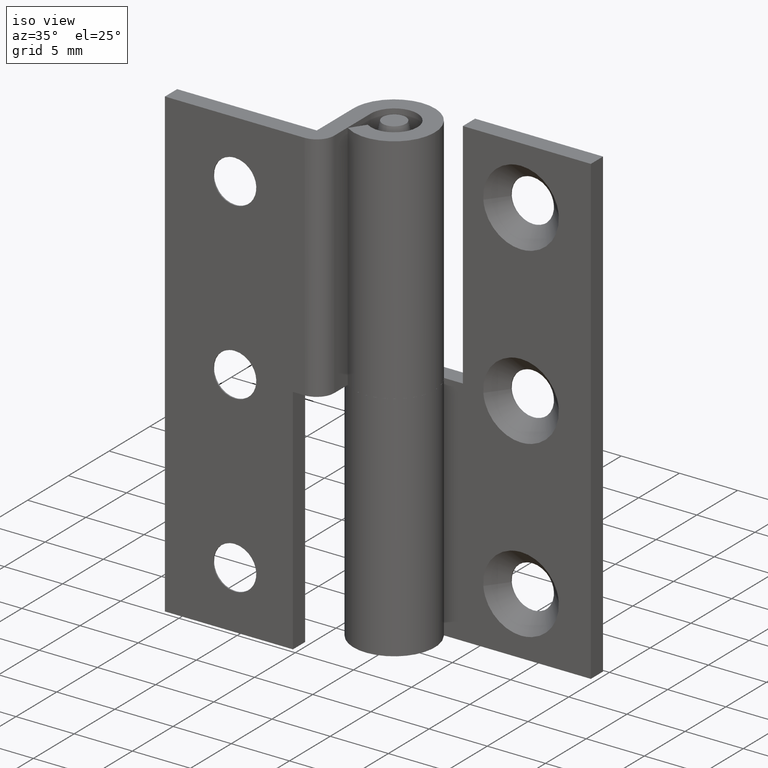
[diagram: clean part render]
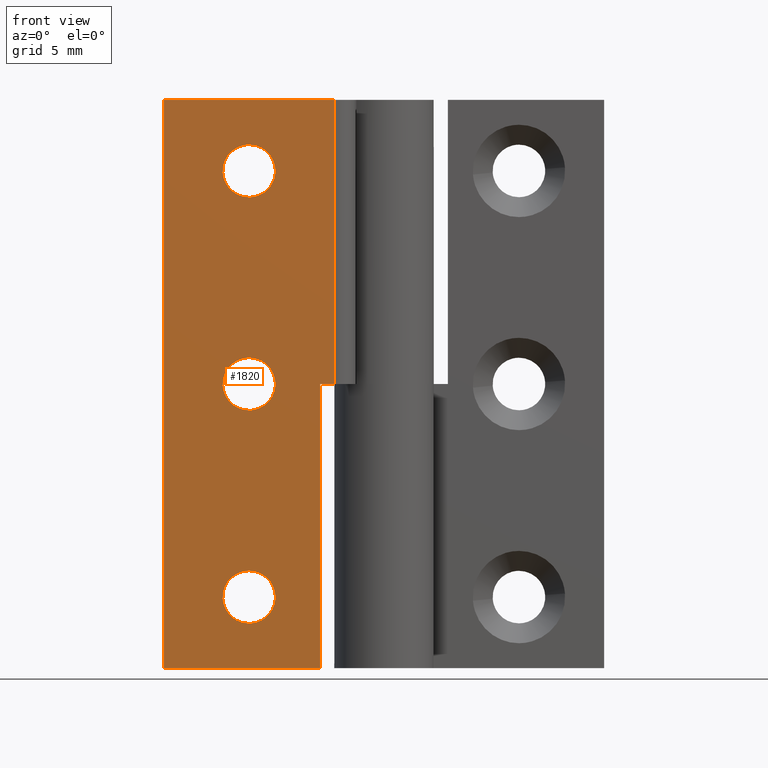
[diagram: tour spotlight — one face highlighted and labeled with its STEP entity id]
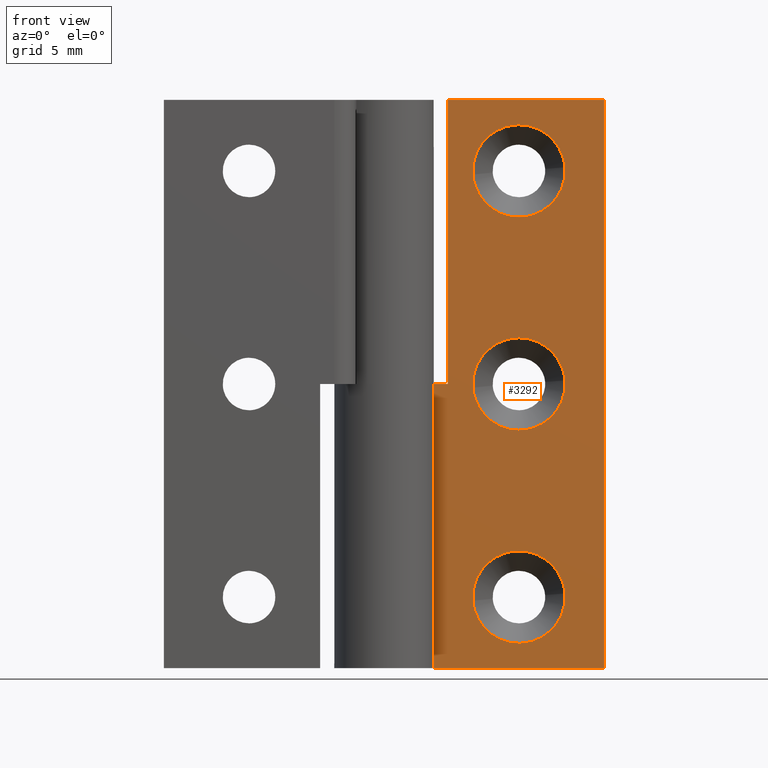
[diagram: tour spotlight — one face highlighted and labeled with its STEP entity id]
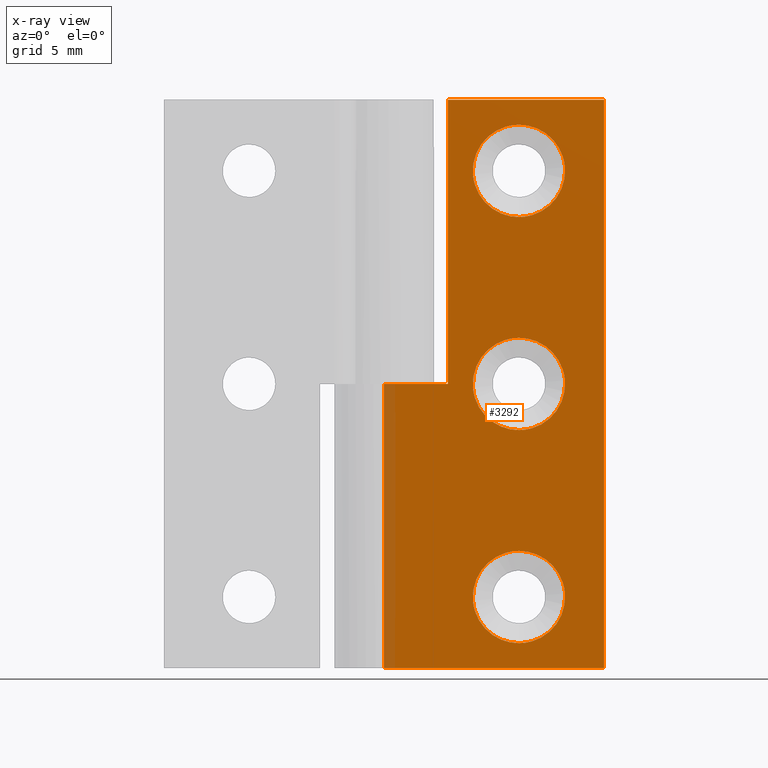
[diagram: x-ray of the same camera — body ghosted, this tour face saturated]
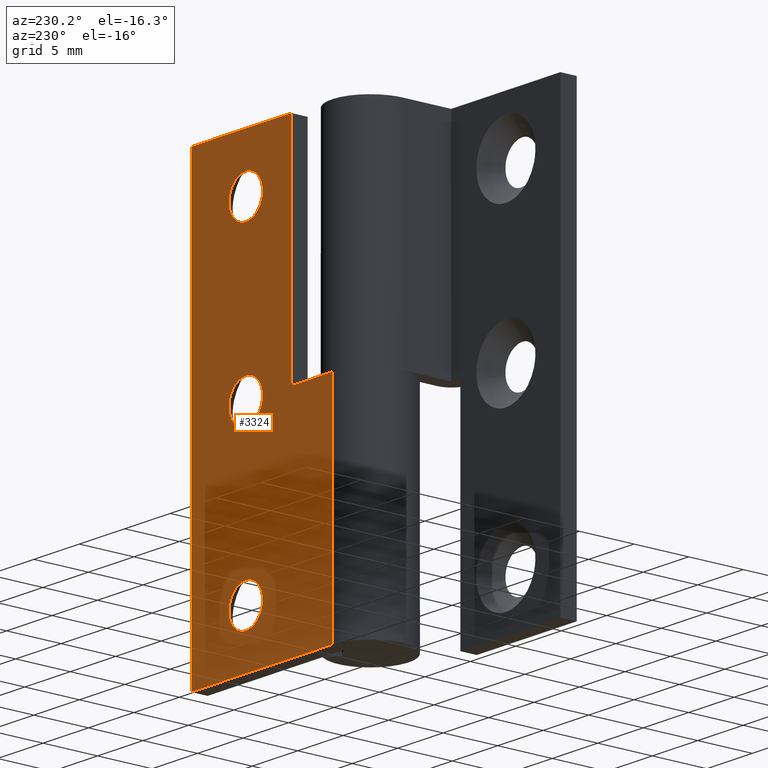
[diagram: tour spotlight — one face highlighted and labeled with its STEP entity id]
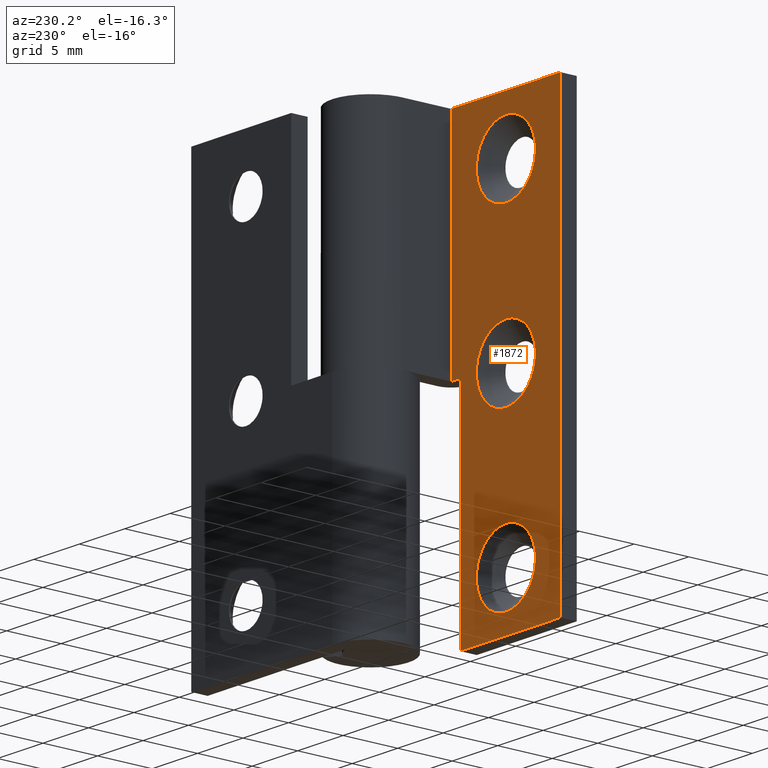
[diagram: tour spotlight — one face highlighted and labeled with its STEP entity id]
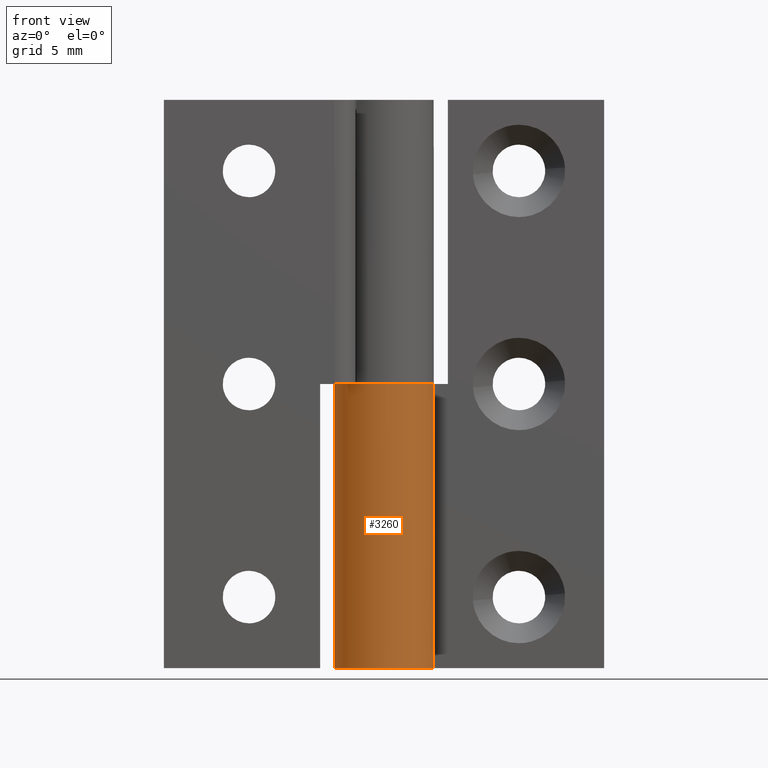
[diagram: tour spotlight — one face highlighted and labeled with its STEP entity id]
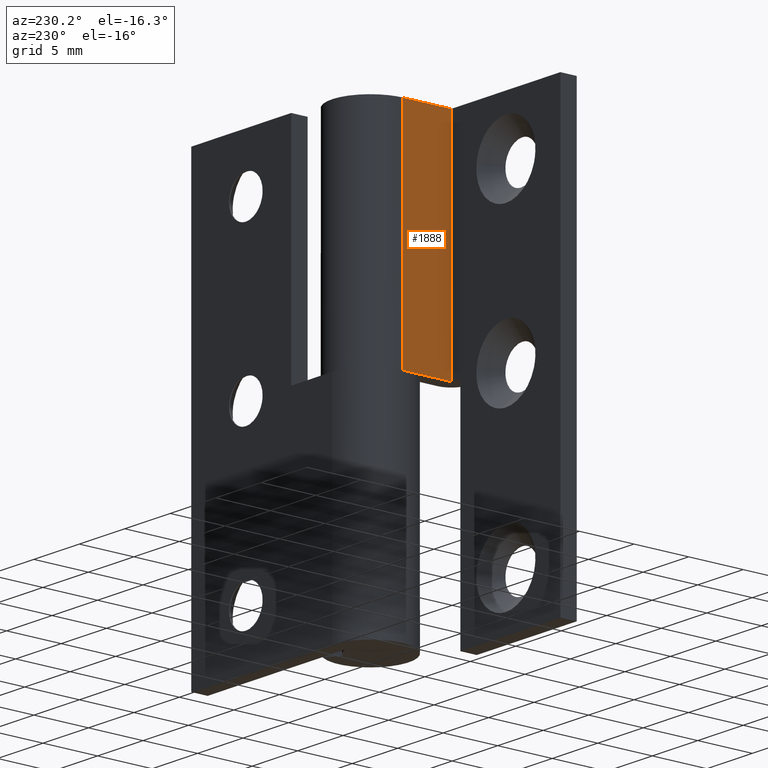
[diagram: tour spotlight — one face highlighted and labeled with its STEP entity id]
A machine part: a face-by-face anatomy tour. The part has 53 B-rep faces; the first image is the clean iso view, then the 6 largest visible faces are spotlighted one at a time (largest first), each with its STEP entity span.

Face 1 — front view, entity #1820. In plain terms, the highlighted face is a freeform B-spline surface patch.
Definition (entity closure, byte-faithful):
#487=CARTESIAN_POINT('',(-11.346549377073270,-6.0,34.887060201743033));
#488=VERTEX_POINT('',#487);
#494=CARTESIAN_POINT('',(-9.500000000000000,-6.0,33.150000000000013));
#495=VERTEX_POINT('',#494);
#496=CARTESIAN_POINT('',(-9.500000000000000,-6.0,33.150000000000013));
#497=CARTESIAN_POINT('',(-11.240306223553665,-6.000000000000001,33.149999999999999));
#498=CARTESIAN_POINT('',(-11.346549377073265,-6.0,34.887060201743026));
#506=(BOUNDED_CURVE()B_SPLINE_CURVE(2,(#496,#497,#498),.UNSPECIFIED.,.F.,.U.)B_SPLINE_CURVE_WITH_KNOTS((3,3),(0.500000000000000,0.739332962220011),.UNSPECIFIED.)CURVE()GEOMETRIC_REPRESENTATION_ITEM()RATIONAL_B_SPLINE_CURVE((1.0,0.719603993308890,0.976072041626144))REPRESENTATION_ITEM(''));
#507=EDGE_CURVE('',#495,#488,#506,.T.);
#509=CARTESIAN_POINT('',(-8.849506714719144,-6.000000000000001,33.268134391529038));
#510=VERTEX_POINT('',#509);
#511=CARTESIAN_POINT('',(-8.849506714719144,-6.000000000000001,33.268134391529046));
#512=CARTESIAN_POINT('',(-9.164026299741957,-6.000000000000001,33.150000000000006));
#513=CARTESIAN_POINT('',(-9.500000000000000,-6.0,33.150000000000013));
#521=(BOUNDED_CURVE()B_SPLINE_CURVE(2,(#511,#512,#513),.UNSPECIFIED.,.F.,.U.)B_SPLINE_CURVE_WITH_KNOTS((3,3),(0.440284164942232,0.500000000000000),.UNSPECIFIED.)CURVE()GEOMETRIC_REPRESENTATION_ITEM()RATIONAL_B_SPLINE_CURVE((0.893499547346206,0.930038547423188,1.0))REPRESENTATION_ITEM(''));
#522=EDGE_CURVE('',#510,#495,#521,.T.);
#572=CARTESIAN_POINT('',(-9.500000000000000,-6.0,36.850000000000001));
#573=VERTEX_POINT('',#572);
#574=CARTESIAN_POINT('',(-9.500000000000000,-6.0,36.850000000000001));
#575=CARTESIAN_POINT('',(-7.650000000000000,-6.0,36.850000000000001));
#576=CARTESIAN_POINT('',(-7.650000000000000,-6.0,35.0));
#577=CARTESIAN_POINT('',(-7.650000000000000,-5.999999999999999,33.718672299583481));
#578=CARTESIAN_POINT('',(-8.849506714719144,-6.000000000000001,33.268134391529046));
#586=(BOUNDED_CURVE()B_SPLINE_CURVE(2,(#574,#575,#576,#577,#578),.UNSPECIFIED.,.F.,.U.)B_SPLINE_CURVE_WITH_KNOTS((3,2,3),(0.0,0.250000000000000,0.440284164942232),.UNSPECIFIED.)CURVE()GEOMETRIC_REPRESENTATION_ITEM()RATIONAL_B_SPLINE_CURVE((1.0,0.707106781186548,1.0,0.777068233763359,0.893499547346206))REPRESENTATION_ITEM(''));
#587=EDGE_CURVE('',#573,#510,#586,.T.);
#589=CARTESIAN_POINT('',(-11.346549377073268,-6.0,34.887060201743026));
#590=CARTESIAN_POINT('',(-11.349999999999998,-6.0,34.943477387779794));
#591=CARTESIAN_POINT('',(-11.350000000000000,-6.0,35.0));
#592=CARTESIAN_POINT('',(-11.350000000000000,-6.0,36.850000000000001));
#593=CARTESIAN_POINT('',(-9.500000000000000,-6.0,36.850000000000001));
#601=(BOUNDED_CURVE()B_SPLINE_CURVE(2,(#589,#590,#591,#592,#593),.UNSPECIFIED.,.F.,.U.)B_SPLINE_CURVE_WITH_KNOTS((3,2,3),(0.739332962220012,0.750000000000000,1.0),.UNSPECIFIED.)CURVE()GEOMETRIC_REPRESENTATION_ITEM()RATIONAL_B_SPLINE_CURVE((0.976072041626145,0.987502787877658,1.0,0.707106781186548,1.0))REPRESENTATION_ITEM(''));
#602=EDGE_CURVE('',#488,#573,#601,.T.);
#815=CARTESIAN_POINT('',(-11.346549377073270,-6.0,19.887060201743029));
#816=VERTEX_POINT('',#815);
#822=CARTESIAN_POINT('',(-9.500000000000000,-6.0,18.149999999999999));
#823=VERTEX_POINT('',#822);
#824=CARTESIAN_POINT('',(-9.500000000000000,-6.0,18.149999999999999));
#825=CARTESIAN_POINT('',(-11.240306223553684,-6.0,18.149999999999991));
#826=CARTESIAN_POINT('',(-11.346549377073270,-6.0,19.887060201743036));
#834=(BOUNDED_CURVE()B_SPLINE_CURVE(2,(#824,#825,#826),.UNSPECIFIED.,.F.,.U.)B_SPLINE_CURVE_WITH_KNOTS((3,3),(0.500000000000000,0.739332962220014),.UNSPECIFIED.)CURVE()GEOMETRIC_REPRESENTATION_ITEM()RATIONAL_B_SPLINE_CURVE((1.0,0.719603993308887,0.976072041626148))REPRESENTATION_ITEM(''));
#835=EDGE_CURVE('',#823,#816,#834,.T.);
#837=CARTESIAN_POINT('',(-8.849506714719144,-6.000000000000001,18.268134391529031));
#838=VERTEX_POINT('',#837);
#839=CARTESIAN_POINT('',(-8.849506714719144,-6.000000000000001,18.268134391529028));
#840=CARTESIAN_POINT('',(-9.164026299741957,-6.0,18.150000000000006));
#841=CARTESIAN_POINT('',(-9.500000000000000,-6.0,18.149999999999999));
#849=(BOUNDED_CURVE()B_SPLINE_CURVE(2,(#839,#840,#841),.UNSPECIFIED.,.F.,.U.)B_SPLINE_CURVE_WITH_KNOTS((3,3),(0.440284164942232,0.500000000000000),.UNSPECIFIED.)CURVE()GEOMETRIC_REPRESENTATION_ITEM()RATIONAL_B_SPLINE_CURVE((0.893499547346206,0.930038547423188,1.0))REPRESENTATION_ITEM(''));
#850=EDGE_CURVE('',#838,#823,#849,.T.);
#900=CARTESIAN_POINT('',(-9.500000000000000,-6.0,21.850000000000001));
#901=VERTEX_POINT('',#900);
#902=CARTESIAN_POINT('',(-9.500000000000000,-6.0,21.850000000000001));
#903=CARTESIAN_POINT('',(-7.650000000000000,-6.0,21.850000000000009));
#904=CARTESIAN_POINT('',(-7.650000000000000,-6.0,20.0));
#905=CARTESIAN_POINT('',(-7.650000000000000,-5.999999999999999,18.718672299583485));
#906=CARTESIAN_POINT('',(-8.849506714719144,-6.000000000000001,18.268134391529028));
#914=(BOUNDED_CURVE()B_SPLINE_CURVE(2,(#902,#903,#904,#905,#906),.UNSPECIFIED.,.F.,.U.)B_SPLINE_CURVE_WITH_KNOTS((3,2,3),(0.0,0.250000000000000,0.440284164942232),.UNSPECIFIED.)CURVE()GEOMETRIC_REPRESENTATION_ITEM()RATIONAL_B_SPLINE_CURVE((1.0,0.707106781186548,1.0,0.777068233763359,0.893499547346206))REPRESENTATION_ITEM(''));
#915=EDGE_CURVE('',#901,#838,#914,.T.);
#917=CARTESIAN_POINT('',(-11.346549377073268,-5.999999999999999,19.887060201743036));
#918=CARTESIAN_POINT('',(-11.350000000000005,-6.000000000000001,19.943477387779797));
#919=CARTESIAN_POINT('',(-11.350000000000000,-6.0,20.0));
#920=CARTESIAN_POINT('',(-11.350000000000000,-6.0,21.850000000000009));
#921=CARTESIAN_POINT('',(-9.500000000000000,-6.0,21.850000000000001));
#929=(BOUNDED_CURVE()B_SPLINE_CURVE(2,(#917,#918,#919,#920,#921),.UNSPECIFIED.,.F.,.U.)B_SPLINE_CURVE_WITH_KNOTS((3,2,3),(0.739332962220013,0.750000000000000,1.0),.UNSPECIFIED.)CURVE()GEOMETRIC_REPRESENTATION_ITEM()RATIONAL_B_SPLINE_CURVE((0.976072041626147,0.987502787877659,1.0,0.707106781186548,1.0))REPRESENTATION_ITEM(''));
#930=EDGE_CURVE('',#816,#901,#929,.T.);
#1143=CARTESIAN_POINT('',(-11.346549377073270,-6.000000000000001,4.887060201743033));
#1144=VERTEX_POINT('',#1143);
#1150=CARTESIAN_POINT('',(-9.500000000000000,-6.0,3.150000000000000));
#1151=VERTEX_POINT('',#1150);
#1152=CARTESIAN_POINT('',(-9.500000000000000,-6.0,3.150000000000000));
#1153=CARTESIAN_POINT('',(-11.240306223553684,-6.0,3.149999999999998));
#1154=CARTESIAN_POINT('',(-11.346549377073270,-6.000000000000002,4.887060201743033));
#1162=(BOUNDED_CURVE()B_SPLINE_CURVE(2,(#1152,#1153,#1154),.UNSPECIFIED.,.F.,.U.)B_SPLINE_CURVE_WITH_KNOTS((3,3),(0.500000000000000,0.739332962220014),.UNSPECIFIED.)CURVE()GEOMETRIC_REPRESENTATION_ITEM()RATIONAL_B_SPLINE_CURVE((1.0,0.719603993308887,0.976072041626148))REPRESENTATION_ITEM(''));
#1163=EDGE_CURVE('',#1151,#1144,#1162,.T.);
#1165=CARTESIAN_POINT('',(-8.849506714719144,-6.0,3.268134391529031));
#1166=VERTEX_POINT('',#1165);
#1167=CARTESIAN_POINT('',(-8.849506714719144,-5.999999999999999,3.268134391529032));
#1168=CARTESIAN_POINT('',(-9.164026299741959,-6.000000000000001,3.150000000000000));
#1169=CARTESIAN_POINT('',(-9.500000000000000,-6.0,3.150000000000000));
#1177=(BOUNDED_CURVE()B_SPLINE_CURVE(2,(#1167,#1168,#1169),.UNSPECIFIED.,.F.,.U.)B_SPLINE_CURVE_WITH_KNOTS((3,3),(0.440284164942232,0.500000000000000),.UNSPECIFIED.)CURVE()GEOMETRIC_REPRESENTATION_ITEM()RATIONAL_B_SPLINE_CURVE((0.893499547346207,0.930038547423188,1.0))REPRESENTATION_ITEM(''));
#1178=EDGE_CURVE('',#1166,#1151,#1177,.T.);
#1228=CARTESIAN_POINT('',(-9.500000000000000,-6.0,6.850000000000001));
#1229=VERTEX_POINT('',#1228);
#1230=CARTESIAN_POINT('',(-9.500000000000000,-6.0,6.850000000000001));
#1231=CARTESIAN_POINT('',(-7.650000000000000,-6.0,6.850000000000001));
#1232=CARTESIAN_POINT('',(-7.650000000000000,-6.0,5.0));
#1233=CARTESIAN_POINT('',(-7.650000000000000,-6.0,3.718672299583482));
#1234=CARTESIAN_POINT('',(-8.849506714719144,-5.999999999999999,3.268134391529032));
#1242=(BOUNDED_CURVE()B_SPLINE_CURVE(2,(#1230,#1231,#1232,#1233,#1234),.UNSPECIFIED.,.F.,.U.)B_SPLINE_CURVE_WITH_KNOTS((3,2,3),(0.0,0.250000000000000,0.440284164942232),.UNSPECIFIED.)CURVE()GEOMETRIC_REPRESENTATION_ITEM()RATIONAL_B_SPLINE_CURVE((1.0,0.707106781186548,1.0,0.777068233763359,0.893499547346207))REPRESENTATION_ITEM(''));
#1243=EDGE_CURVE('',#1229,#1166,#1242,.T.);
#1245=CARTESIAN_POINT('',(-11.346549377073272,-6.000000000000001,4.887060201743033));
#1246=CARTESIAN_POINT('',(-11.349999999999998,-6.0,4.943477387779799));
#1247=CARTESIAN_POINT('',(-11.350000000000000,-6.0,5.0));
#1248=CARTESIAN_POINT('',(-11.350000000000000,-6.0,6.850000000000001));
#1249=CARTESIAN_POINT('',(-9.500000000000000,-6.0,6.850000000000001));
#1257=(BOUNDED_CURVE()B_SPLINE_CURVE(2,(#1245,#1246,#1247,#1248,#1249),.UNSPECIFIED.,.F.,.U.)B_SPLINE_CURVE_WITH_KNOTS((3,2,3),(0.739332962220013,0.750000000000000,1.0),.UNSPECIFIED.)CURVE()GEOMETRIC_REPRESENTATION_ITEM()RATIONAL_B_SPLINE_CURVE((0.976072041626147,0.987502787877659,1.0,0.707106781186548,1.0))REPRESENTATION_ITEM(''));
#1258=EDGE_CURVE('',#1144,#1229,#1257,.T.);
#1437=CARTESIAN_POINT('',(-3.500000000000000,-5.999999999999920,20.0));
#1438=VERTEX_POINT('',#1437);
#1459=CARTESIAN_POINT('',(-3.500000000000000,-5.999999999999920,40.0));
#1460=VERTEX_POINT('',#1459);
#1474=CARTESIAN_POINT('',(-3.500000000000000,-5.999999999999920,20.0));
#1475=CARTESIAN_POINT('',(-3.500000000000000,-5.999999999999920,40.0));
#1476=QUASI_UNIFORM_CURVE('',1,(#1474,#1475),.UNSPECIFIED.,.F.,.U.);
#1477=EDGE_CURVE('',#1438,#1460,#1476,.T.);
#1495=CARTESIAN_POINT('',(-4.500000000000000,-5.999999999999890,20.0));
#1496=VERTEX_POINT('',#1495);
#1497=CARTESIAN_POINT('',(-4.500000000000000,-5.999999999999890,20.0));
#1498=CARTESIAN_POINT('',(-3.500000000000000,-5.999999999999920,20.0));
#1499=QUASI_UNIFORM_CURVE('',1,(#1497,#1498),.UNSPECIFIED.,.F.,.U.);
#1500=EDGE_CURVE('',#1496,#1438,#1499,.T.);
#1586=CARTESIAN_POINT('',(-4.500000000000000,-5.999999999999920,0.0));
#1587=VERTEX_POINT('',#1586);
#1588=CARTESIAN_POINT('',(-4.500000000000000,-5.999999999999920,0.0));
#1589=CARTESIAN_POINT('',(-4.500000000000000,-5.999999999999890,20.0));
#1590=QUASI_UNIFORM_CURVE('',1,(#1588,#1589),.UNSPECIFIED.,.F.,.U.);
#1591=EDGE_CURVE('',#1587,#1496,#1590,.T.);
#1606=CARTESIAN_POINT('',(-15.500000000000000,-5.999999999999920,40.0));
#1607=VERTEX_POINT('',#1606);
#1608=CARTESIAN_POINT('',(-15.500000000000000,-5.999999999999920,40.0));
#1609=CARTESIAN_POINT('',(-3.500000000000000,-5.999999999999920,40.0));
#1610=QUASI_UNIFORM_CURVE('',1,(#1608,#1609),.UNSPECIFIED.,.F.,.U.);
#1611=EDGE_CURVE('',#1607,#1460,#1610,.T.);
#1705=CARTESIAN_POINT('',(-15.500000000000000,-5.999999999999920,0.0));
#1706=VERTEX_POINT('',#1705);
#1707=CARTESIAN_POINT('',(-15.500000000000000,-5.999999999999920,0.0));
#1708=CARTESIAN_POINT('',(-4.500000000000000,-5.999999999999920,0.0));
#1709=QUASI_UNIFORM_CURVE('',1,(#1707,#1708),.UNSPECIFIED.,.F.,.U.);
#1710=EDGE_CURVE('',#1706,#1587,#1709,.T.);
#1785=CARTESIAN_POINT('',(-16.099399976741669,-5.999999999999920,41.997999922472239));
#1786=CARTESIAN_POINT('',(-16.099399976741669,-5.999999999999920,-1.998000995355844));
#1787=CARTESIAN_POINT('',(-2.900599701393246,-5.999999999999920,41.997999922472239));
#1788=CARTESIAN_POINT('',(-2.900599701393246,-5.999999999999920,-1.998000995355844));
#1789=B_SPLINE_SURFACE_WITH_KNOTS('',1,1,((#1785,#1787),(#1786,#1788)),.UNSPECIFIED.,.F.,.F.,.U.,(2,2),(2,2),(0.0,43.996000917828077),(0.0,13.198800275348431),.UNSPECIFIED.);
#1790=ORIENTED_EDGE('',*,*,#1500,.T.);
#1791=ORIENTED_EDGE('',*,*,#1477,.T.);
#1792=ORIENTED_EDGE('',*,*,#1611,.F.);
#1793=CARTESIAN_POINT('',(-15.500000000000000,-5.999999999999920,0.0));
#1794=CARTESIAN_POINT('',(-15.500000000000000,-5.999999999999920,40.0));
#1795=QUASI_UNIFORM_CURVE('',1,(#1793,#1794),.UNSPECIFIED.,.F.,.U.);
#1796=EDGE_CURVE('',#1706,#1607,#1795,.T.);
#1797=ORIENTED_EDGE('',*,*,#1796,.F.);
#1798=ORIENTED_EDGE('',*,*,#1710,.T.);
#1799=ORIENTED_EDGE('',*,*,#1591,.T.);
#1800=EDGE_LOOP('',(#1790,#1791,#1792,#1797,#1798,#1799));
#1801=FACE_OUTER_BOUND('',#1800,.T.);
#1802=ORIENTED_EDGE('',*,*,#1163,.T.);
#1803=ORIENTED_EDGE('',*,*,#1258,.T.);
#1804=ORIENTED_EDGE('',*,*,#1243,.T.);
#1805=ORIENTED_EDGE('',*,*,#1178,.T.);
#1806=EDGE_LOOP('',(#1802,#1803,#1804,#1805));
#1807=FACE_BOUND('',#1806,.T.);
#1808=ORIENTED_EDGE('',*,*,#835,.T.);
#1809=ORIENTED_EDGE('',*,*,#930,.T.);
#1810=ORIENTED_EDGE('',*,*,#915,.T.);
#1811=ORIENTED_EDGE('',*,*,#850,.T.);
#1812=EDGE_LOOP('',(#1808,#1809,#1810,#1811));
#1813=FACE_BOUND('',#1812,.T.);
#1814=ORIENTED_EDGE('',*,*,#507,.T.);
#1815=ORIENTED_EDGE('',*,*,#602,.T.);
#1816=ORIENTED_EDGE('',*,*,#587,.T.);
#1817=ORIENTED_EDGE('',*,*,#522,.T.);
#1818=EDGE_LOOP('',(#1814,#1815,#1816,#1817));
#1819=FACE_BOUND('',#1818,.T.);
#1820=ADVANCED_FACE('',(#1801,#1807,#1813,#1819),#1789,.T.);

Face 2 — front view, entity #3292. An x-ray twin of the same camera follows (body ghosted, this face saturated) — the face is partly hidden behind the body. In plain terms, the highlighted face is a freeform B-spline surface patch.
Definition (entity closure, byte-faithful):
#2179=CARTESIAN_POINT('',(12.739981334637109,1.999999999988912,35.254992061200319));
#2180=VERTEX_POINT('',#2179);
#2186=CARTESIAN_POINT('',(9.500000000000000,2.0,38.250000000000007));
#2187=VERTEX_POINT('',#2186);
#2188=CARTESIAN_POINT('',(9.500000000000000,2.0,38.250000000000007));
#2189=CARTESIAN_POINT('',(12.504269097733003,2.000000000000000,38.250000000000007));
#2190=CARTESIAN_POINT('',(12.739981334637111,1.999999999988912,35.254992061200319));
#2198=(BOUNDED_CURVE()B_SPLINE_CURVE(2,(#2188,#2189,#2190),.UNSPECIFIED.,.F.,.U.)B_SPLINE_CURVE_WITH_KNOTS((3,3),(0.0,0.236331300623883),.UNSPECIFIED.)CURVE()GEOMETRIC_REPRESENTATION_ITEM()RATIONAL_B_SPLINE_CURVE((1.0,0.723120658615605,0.969723356153276))REPRESENTATION_ITEM(''));
#2199=EDGE_CURVE('',#2187,#2180,#2198,.T.);
#2201=CARTESIAN_POINT('',(6.260018665362888,1.999999999988912,34.745007938799688));
#2202=VERTEX_POINT('',#2201);
#2203=CARTESIAN_POINT('',(6.260018665362887,1.999999999988912,34.745007938799688));
#2204=CARTESIAN_POINT('',(6.250000000000000,2.000000000000000,34.872307152140735));
#2205=CARTESIAN_POINT('',(6.250000000000000,2.0,35.0));
#2206=CARTESIAN_POINT('',(6.249999999999999,2.0,38.250000000000014));
#2207=CARTESIAN_POINT('',(9.500000000000000,2.0,38.250000000000007));
#2215=(BOUNDED_CURVE()B_SPLINE_CURVE(2,(#2203,#2204,#2205,#2206,#2207),.UNSPECIFIED.,.F.,.U.)B_SPLINE_CURVE_WITH_KNOTS((3,2,3),(0.736331300623884,0.750000000000000,1.0),.UNSPECIFIED.)CURVE()GEOMETRIC_REPRESENTATION_ITEM()RATIONAL_B_SPLINE_CURVE((0.969723356153277,0.983986122570943,1.0,0.707106781186547,1.0))REPRESENTATION_ITEM(''));
#2216=EDGE_CURVE('',#2202,#2187,#2215,.T.);
#2253=CARTESIAN_POINT('',(9.500000000000000,2.0,31.750000000000000));
#2254=VERTEX_POINT('',#2253);
#2255=CARTESIAN_POINT('',(9.500000000000000,2.0,31.750000000000000));
#2256=CARTESIAN_POINT('',(6.495730902266979,2.000000000000000,31.750000000000011));
#2257=CARTESIAN_POINT('',(6.260018665362888,1.999999999988912,34.745007938799688));
#2265=(BOUNDED_CURVE()B_SPLINE_CURVE(2,(#2255,#2256,#2257),.UNSPECIFIED.,.F.,.U.)B_SPLINE_CURVE_WITH_KNOTS((3,3),(0.500000000000000,0.736331300623884),.UNSPECIFIED.)CURVE()GEOMETRIC_REPRESENTATION_ITEM()RATIONAL_B_SPLINE_CURVE((1.0,0.723120658615603,0.969723356153278))REPRESENTATION_ITEM(''));
#2266=EDGE_CURVE('',#2254,#2202,#2265,.T.);
#2268=CARTESIAN_POINT('',(12.739981334637108,1.999999999988912,35.254992061200319));
#2269=CARTESIAN_POINT('',(12.749999999999998,2.0,35.127692847859265));
#2270=CARTESIAN_POINT('',(12.750000000000000,2.0,35.0));
#2271=CARTESIAN_POINT('',(12.750000000000002,2.0,31.749999999999996));
#2272=CARTESIAN_POINT('',(9.500000000000000,2.0,31.750000000000000));
#2280=(BOUNDED_CURVE()B_SPLINE_CURVE(2,(#2268,#2269,#2270,#2271,#2272),.UNSPECIFIED.,.F.,.U.)B_SPLINE_CURVE_WITH_KNOTS((3,2,3),(0.236331300623883,0.250000000000000,0.500000000000000),.UNSPECIFIED.)CURVE()GEOMETRIC_REPRESENTATION_ITEM()RATIONAL_B_SPLINE_CURVE((0.969723356153276,0.983986122570943,1.0,0.707106781186547,1.0))REPRESENTATION_ITEM(''));
#2281=EDGE_CURVE('',#2180,#2254,#2280,.T.);
#2507=CARTESIAN_POINT('',(12.739981334637109,1.999999999988912,20.254992061200319));
#2508=VERTEX_POINT('',#2507);
#2514=CARTESIAN_POINT('',(9.500000000000000,2.0,23.250000000000000));
#2515=VERTEX_POINT('',#2514);
#2516=CARTESIAN_POINT('',(9.500000000000000,2.0,23.250000000000000));
#2517=CARTESIAN_POINT('',(12.504269097733005,2.0,23.250000000000007));
#2518=CARTESIAN_POINT('',(12.739981334637108,1.999999999988912,20.254992061200323));
#2526=(BOUNDED_CURVE()B_SPLINE_CURVE(2,(#2516,#2517,#2518),.UNSPECIFIED.,.F.,.U.)B_SPLINE_CURVE_WITH_KNOTS((3,3),(0.0,0.236331300623883),.UNSPECIFIED.)CURVE()GEOMETRIC_REPRESENTATION_ITEM()RATIONAL_B_SPLINE_CURVE((1.0,0.723120658615604,0.969723356153276))REPRESENTATION_ITEM(''));
#2527=EDGE_CURVE('',#2515,#2508,#2526,.T.);
#2529=CARTESIAN_POINT('',(6.260018665362887,1.999999999988912,19.745007938799681));
#2530=VERTEX_POINT('',#2529);
#2531=CARTESIAN_POINT('',(6.260018665362887,1.999999999988911,19.745007938799684));
#2532=CARTESIAN_POINT('',(6.250000000000002,2.000000000000000,19.872307152140731));
#2533=CARTESIAN_POINT('',(6.250000000000000,2.0,20.0));
#2534=CARTESIAN_POINT('',(6.249999999999999,2.0,23.250000000000004));
#2535=CARTESIAN_POINT('',(9.500000000000000,2.0,23.250000000000000));
#2543=(BOUNDED_CURVE()B_SPLINE_CURVE(2,(#2531,#2532,#2533,#2534,#2535),.UNSPECIFIED.,.F.,.U.)B_SPLINE_CURVE_WITH_KNOTS((3,2,3),(0.736331300623884,0.750000000000000,1.0),.UNSPECIFIED.)CURVE()GEOMETRIC_REPRESENTATION_ITEM()RATIONAL_B_SPLINE_CURVE((0.969723356153277,0.983986122570943,1.0,0.707106781186547,1.0))REPRESENTATION_ITEM(''));
#2544=EDGE_CURVE('',#2530,#2515,#2543,.T.);
#2581=CARTESIAN_POINT('',(9.500000000000000,2.0,16.750000000000000));
#2582=VERTEX_POINT('',#2581);
#2583=CARTESIAN_POINT('',(9.500000000000000,2.0,16.750000000000000));
#2584=CARTESIAN_POINT('',(6.495730902266979,2.000000000000000,16.750000000000007));
#2585=CARTESIAN_POINT('',(6.260018665362888,1.999999999988912,19.745007938799681));
#2593=(BOUNDED_CURVE()B_SPLINE_CURVE(2,(#2583,#2584,#2585),.UNSPECIFIED.,.F.,.U.)B_SPLINE_CURVE_WITH_KNOTS((3,3),(0.500000000000000,0.736331300623884),.UNSPECIFIED.)CURVE()GEOMETRIC_REPRESENTATION_ITEM()RATIONAL_B_SPLINE_CURVE((1.0,0.723120658615603,0.969723356153278))REPRESENTATION_ITEM(''));
#2594=EDGE_CURVE('',#2582,#2530,#2593,.T.);
#2596=CARTESIAN_POINT('',(12.739981334637115,1.999999999988912,20.254992061200316));
#2597=CARTESIAN_POINT('',(12.750000000000004,2.000000000000000,20.127692847859272));
#2598=CARTESIAN_POINT('',(12.750000000000000,2.0,20.0));
#2599=CARTESIAN_POINT('',(12.750000000000002,2.0,16.750000000000000));
#2600=CARTESIAN_POINT('',(9.500000000000000,2.0,16.750000000000000));
#2608=(BOUNDED_CURVE()B_SPLINE_CURVE(2,(#2596,#2597,#2598,#2599,#2600),.UNSPECIFIED.,.F.,.U.)B_SPLINE_CURVE_WITH_KNOTS((3,2,3),(0.236331300623883,0.250000000000000,0.500000000000000),.UNSPECIFIED.)CURVE()GEOMETRIC_REPRESENTATION_ITEM()RATIONAL_B_SPLINE_CURVE((0.969723356153276,0.983986122570943,1.0,0.707106781186547,1.0))REPRESENTATION_ITEM(''));
#2609=EDGE_CURVE('',#2508,#2582,#2608,.T.);
#2835=CARTESIAN_POINT('',(12.739981334637109,1.999999999988912,5.254992061200316));
#2836=VERTEX_POINT('',#2835);
#2842=CARTESIAN_POINT('',(9.500000000000000,2.0,8.250000000000000));
#2843=VERTEX_POINT('',#2842);
#2844=CARTESIAN_POINT('',(9.500000000000000,2.0,8.250000000000000));
#2845=CARTESIAN_POINT('',(12.504269097733014,2.000000000000000,8.250000000000000));
#2846=CARTESIAN_POINT('',(12.739981334637118,1.999999999988912,5.254992061200316));
#2854=(BOUNDED_CURVE()B_SPLINE_CURVE(2,(#2844,#2845,#2846),.UNSPECIFIED.,.F.,.U.)B_SPLINE_CURVE_WITH_KNOTS((3,3),(0.0,0.236331300623884),.UNSPECIFIED.)CURVE()GEOMETRIC_REPRESENTATION_ITEM()RATIONAL_B_SPLINE_CURVE((1.0,0.723120658615604,0.969723356153277))REPRESENTATION_ITEM(''));
#2855=EDGE_CURVE('',#2843,#2836,#2854,.T.);
#2857=CARTESIAN_POINT('',(6.260018665362888,1.999999999988912,4.745007938799684));
#2858=VERTEX_POINT('',#2857);
#2859=CARTESIAN_POINT('',(6.260018665362887,1.999999999988912,4.745007938799684));
#2860=CARTESIAN_POINT('',(6.250000000000000,2.000000000000000,4.872307152140735));
#2861=CARTESIAN_POINT('',(6.250000000000000,2.0,5.0));
#2862=CARTESIAN_POINT('',(6.249999999999999,2.0,8.250000000000000));
#2863=CARTESIAN_POINT('',(9.500000000000000,2.0,8.250000000000000));
#2871=(BOUNDED_CURVE()B_SPLINE_CURVE(2,(#2859,#2860,#2861,#2862,#2863),.UNSPECIFIED.,.F.,.U.)B_SPLINE_CURVE_WITH_KNOTS((3,2,3),(0.736331300623884,0.750000000000000,1.0),.UNSPECIFIED.)CURVE()GEOMETRIC_REPRESENTATION_ITEM()RATIONAL_B_SPLINE_CURVE((0.969723356153277,0.983986122570943,1.0,0.707106781186547,1.0))REPRESENTATION_ITEM(''));
#2872=EDGE_CURVE('',#2858,#2843,#2871,.T.);
#2909=CARTESIAN_POINT('',(9.500000000000000,2.0,1.750000000000000));
#2910=VERTEX_POINT('',#2909);
#2911=CARTESIAN_POINT('',(9.500000000000000,2.0,1.750000000000000));
#2912=CARTESIAN_POINT('',(6.495730902266979,2.000000000000000,1.750000000000000));
#2913=CARTESIAN_POINT('',(6.260018665362888,1.999999999988912,4.745007938799684));
#2921=(BOUNDED_CURVE()B_SPLINE_CURVE(2,(#2911,#2912,#2913),.UNSPECIFIED.,.F.,.U.)B_SPLINE_CURVE_WITH_KNOTS((3,3),(0.500000000000000,0.736331300623884),.UNSPECIFIED.)CURVE()GEOMETRIC_REPRESENTATION_ITEM()RATIONAL_B_SPLINE_CURVE((1.0,0.723120658615603,0.969723356153278))REPRESENTATION_ITEM(''));
#2922=EDGE_CURVE('',#2910,#2858,#2921,.T.);
#2924=CARTESIAN_POINT('',(12.739981334637109,1.999999999988912,5.254992061200316));
#2925=CARTESIAN_POINT('',(12.750000000000002,2.000000000000000,5.127692847859264));
#2926=CARTESIAN_POINT('',(12.750000000000000,2.0,5.0));
#2927=CARTESIAN_POINT('',(12.750000000000002,2.0,1.750000000000000));
#2928=CARTESIAN_POINT('',(9.500000000000000,2.0,1.750000000000000));
#2936=(BOUNDED_CURVE()B_SPLINE_CURVE(2,(#2924,#2925,#2926,#2927,#2928),.UNSPECIFIED.,.F.,.U.)B_SPLINE_CURVE_WITH_KNOTS((3,2,3),(0.236331300623884,0.250000000000000,0.500000000000000),.UNSPECIFIED.)CURVE()GEOMETRIC_REPRESENTATION_ITEM()RATIONAL_B_SPLINE_CURVE((0.969723356153277,0.983986122570943,1.0,0.707106781186547,1.0))REPRESENTATION_ITEM(''));
#2937=EDGE_CURVE('',#2836,#2910,#2936,.T.);
#2978=CARTESIAN_POINT('',(0.0,2.0,20.0));
#2979=VERTEX_POINT('',#2978);
#2999=CARTESIAN_POINT('',(4.500000000000100,2.0,20.0));
#3000=VERTEX_POINT('',#2999);
#3001=CARTESIAN_POINT('',(0.0,2.0,20.0));
#3002=CARTESIAN_POINT('',(4.500000000000100,2.0,20.0));
#3003=QUASI_UNIFORM_CURVE('',1,(#3001,#3002),.UNSPECIFIED.,.F.,.U.);
#3004=EDGE_CURVE('',#2979,#3000,#3003,.T.);
#3026=CARTESIAN_POINT('',(4.500000000000100,2.0,40.0));
#3027=VERTEX_POINT('',#3026);
#3028=CARTESIAN_POINT('',(4.500000000000100,2.0,20.0));
#3029=CARTESIAN_POINT('',(4.500000000000100,2.0,40.0));
#3030=QUASI_UNIFORM_CURVE('',1,(#3028,#3029),.UNSPECIFIED.,.F.,.U.);
#3031=EDGE_CURVE('',#3000,#3027,#3030,.T.);
#3084=CARTESIAN_POINT('',(15.500000000000000,2.0,0.0));
#3085=VERTEX_POINT('',#3084);
#3091=CARTESIAN_POINT('',(0.0,2.0,0.0));
#3092=VERTEX_POINT('',#3091);
#3093=CARTESIAN_POINT('',(15.500000000000000,2.0,0.0));
#3094=CARTESIAN_POINT('',(0.0,2.0,0.0));
#3095=QUASI_UNIFORM_CURVE('',1,(#3093,#3094),.UNSPECIFIED.,.F.,.U.);
#3096=EDGE_CURVE('',#3085,#3092,#3095,.T.);
#3140=CARTESIAN_POINT('',(15.500000000000000,2.0,40.0));
#3141=VERTEX_POINT('',#3140);
#3142=CARTESIAN_POINT('',(15.500000000000000,2.0,40.0));
#3143=CARTESIAN_POINT('',(4.500000000000100,2.0,40.0));
#3144=QUASI_UNIFORM_CURVE('',1,(#3142,#3143),.UNSPECIFIED.,.F.,.U.);
#3145=EDGE_CURVE('',#3141,#3027,#3144,.T.);
#3197=CARTESIAN_POINT('',(0.0,2.0,20.0));
#3198=CARTESIAN_POINT('',(0.0,2.0,0.0));
#3199=QUASI_UNIFORM_CURVE('',1,(#3197,#3198),.UNSPECIFIED.,.F.,.U.);
#3200=EDGE_CURVE('',#2979,#3092,#3199,.T.);
#3220=CARTESIAN_POINT('',(15.500000000000000,2.0,40.0));
#3221=CARTESIAN_POINT('',(15.500000000000000,2.0,0.0));
#3222=QUASI_UNIFORM_CURVE('',1,(#3220,#3221),.UNSPECIFIED.,.F.,.U.);
#3223=EDGE_CURVE('',#3141,#3085,#3222,.T.);
#3261=CARTESIAN_POINT('',(-0.774224969957992,2.0,41.997999922472239));
#3262=CARTESIAN_POINT('',(-0.774224969957992,2.0,-1.998000995355844));
#3263=CARTESIAN_POINT('',(16.274225385700390,2.0,41.997999922472239));
#3264=CARTESIAN_POINT('',(16.274225385700390,2.0,-1.998000995355844));
#3265=B_SPLINE_SURFACE_WITH_KNOTS('',1,1,((#3261,#3263),(#3262,#3264)),.UNSPECIFIED.,.F.,.F.,.U.,(2,2),(2,2),(0.0,43.996000917828077),(0.0,17.048450355658382),.UNSPECIFIED.);
#3266=ORIENTED_EDGE('',*,*,#3031,.F.);
#3267=ORIENTED_EDGE('',*,*,#3004,.F.);
#3268=ORIENTED_EDGE('',*,*,#3200,.T.);
#3269=ORIENTED_EDGE('',*,*,#3096,.F.);
#3270=ORIENTED_EDGE('',*,*,#3223,.F.);
#3271=ORIENTED_EDGE('',*,*,#3145,.T.);
#3272=EDGE_LOOP('',(#3266,#3267,#3268,#3269,#3270,#3271));
#3273=FACE_OUTER_BOUND('',#3272,.T.);
#3274=ORIENTED_EDGE('',*,*,#2922,.T.);
#3275=ORIENTED_EDGE('',*,*,#2872,.T.);
#3276=ORIENTED_EDGE('',*,*,#2855,.T.);
#3277=ORIENTED_EDGE('',*,*,#2937,.T.);
#3278=EDGE_LOOP('',(#3274,#3275,#3276,#3277));
#3279=FACE_BOUND('',#3278,.T.);
#3280=ORIENTED_EDGE('',*,*,#2594,.T.);
#3281=ORIENTED_EDGE('',*,*,#2544,.T.);
#3282=ORIENTED_EDGE('',*,*,#2527,.T.);
#3283=ORIENTED_EDGE('',*,*,#2609,.T.);
#3284=EDGE_LOOP('',(#3280,#3281,#3282,#3283));
#3285=FACE_BOUND('',#3284,.T.);
#3286=ORIENTED_EDGE('',*,*,#2266,.T.);
#3287=ORIENTED_EDGE('',*,*,#2216,.T.);
#3288=ORIENTED_EDGE('',*,*,#2199,.T.);
#3289=ORIENTED_EDGE('',*,*,#2281,.T.);
#3290=EDGE_LOOP('',(#3286,#3287,#3288,#3289));
#3291=FACE_BOUND('',#3290,.T.);
#3292=ADVANCED_FACE('',(#3273,#3279,#3285,#3291),#3265,.T.);

Face 3 — auxiliary view, entity #3324. In plain terms, the highlighted face is a freeform B-spline surface patch.
Definition (entity closure, byte-faithful):
#1994=CARTESIAN_POINT('',(11.337918004221761,3.500000000000000,34.788913738586558));
#1995=VERTEX_POINT('',#1994);
#2001=CARTESIAN_POINT('',(9.500000000000000,3.500000000000000,33.150000000000013));
#2002=VERTEX_POINT('',#2001);
#2003=CARTESIAN_POINT('',(11.337918004221757,3.500000000000000,34.788913738586558));
#2004=CARTESIAN_POINT('',(11.149687503400612,3.500000000000000,33.150000000000006));
#2005=CARTESIAN_POINT('',(9.500000000000000,3.500000000000000,33.150000000000013));
#2013=(BOUNDED_CURVE()B_SPLINE_CURVE(2,(#2003,#2004,#2005),.UNSPECIFIED.,.F.,.U.)B_SPLINE_CURVE_WITH_KNOTS((3,3),(0.269767761704146,0.500000000000000),.UNSPECIFIED.)CURVE()GEOMETRIC_REPRESENTATION_ITEM()RATIONAL_B_SPLINE_CURVE((0.957343724965289,0.730266154603606,1.0))REPRESENTATION_ITEM(''));
#2014=EDGE_CURVE('',#1995,#2002,#2013,.T.);
#2016=CARTESIAN_POINT('',(7.653450623013051,3.500000000000000,34.887060200331717));
#2017=VERTEX_POINT('',#2016);
#2018=CARTESIAN_POINT('',(9.500000000000000,3.500000000000000,33.150000000000013));
#2019=CARTESIAN_POINT('',(7.759693779111523,3.500000000000000,33.150000000000013));
#2020=CARTESIAN_POINT('',(7.653450623013051,3.500000000000000,34.887060200331717));
#2028=(BOUNDED_CURVE()B_SPLINE_CURVE(2,(#2018,#2019,#2020),.UNSPECIFIED.,.F.,.U.)B_SPLINE_CURVE_WITH_KNOTS((3,3),(0.500000000000000,0.739332961956258),.UNSPECIFIED.)CURVE()GEOMETRIC_REPRESENTATION_ITEM()RATIONAL_B_SPLINE_CURVE((1.0,0.719603993617896,0.976072041060870))REPRESENTATION_ITEM(''));
#2029=EDGE_CURVE('',#2002,#2017,#2028,.T.);
#2124=CARTESIAN_POINT('',(9.500000000000000,3.500000000000000,36.850000000000001));
#2125=VERTEX_POINT('',#2124);
#2126=CARTESIAN_POINT('',(7.653450623013051,3.500000000000000,34.887060200331717));
#2127=CARTESIAN_POINT('',(7.650000000000000,3.500000000000000,34.943477386364520));
#2128=CARTESIAN_POINT('',(7.650000000000000,3.500000000000000,35.0));
#2129=CARTESIAN_POINT('',(7.650000000000000,3.499999999999999,36.850000000000001));
#2130=CARTESIAN_POINT('',(9.500000000000000,3.500000000000000,36.850000000000001));
#2138=(BOUNDED_CURVE()B_SPLINE_CURVE(2,(#2126,#2127,#2128,#2129,#2130),.UNSPECIFIED.,.F.,.U.)B_SPLINE_CURVE_WITH_KNOTS((3,2,3),(0.739332961956258,0.750000000000000,1.0),.UNSPECIFIED.)CURVE()GEOMETRIC_REPRESENTATION_ITEM()RATIONAL_B_SPLINE_CURVE((0.976072041060869,0.987502787568651,1.0,0.707106781186548,1.0))REPRESENTATION_ITEM(''));
#2139=EDGE_CURVE('',#2017,#2125,#2138,.T.);
#2141=CARTESIAN_POINT('',(9.500000000000000,3.500000000000000,36.850000000000001));
#2142=CARTESIAN_POINT('',(11.350000000000000,3.499999999999999,36.850000000000001));
#2143=CARTESIAN_POINT('',(11.350000000000000,3.500000000000000,35.0));
#2144=CARTESIAN_POINT('',(11.349999999999994,3.500000000000000,34.894111083247061));
#2145=CARTESIAN_POINT('',(11.337918004221757,3.500000000000000,34.788913738586558));
#2153=(BOUNDED_CURVE()B_SPLINE_CURVE(2,(#2141,#2142,#2143,#2144,#2145),.UNSPECIFIED.,.F.,.U.)B_SPLINE_CURVE_WITH_KNOTS((3,2,3),(0.0,0.250000000000000,0.269767761704146),.UNSPECIFIED.)CURVE()GEOMETRIC_REPRESENTATION_ITEM()RATIONAL_B_SPLINE_CURVE((1.0,0.707106781186548,1.0,0.976840626582941,0.957343724965289))REPRESENTATION_ITEM(''));
#2154=EDGE_CURVE('',#2125,#1995,#2153,.T.);
#2322=CARTESIAN_POINT('',(11.337918004221761,3.500000000000000,19.788913738586569));
#2323=VERTEX_POINT('',#2322);
#2329=CARTESIAN_POINT('',(9.500000000000000,3.500000000000000,18.149999999999999));
#2330=VERTEX_POINT('',#2329);
#2331=CARTESIAN_POINT('',(11.337918004221759,3.500000000000000,19.788913738586565));
#2332=CARTESIAN_POINT('',(11.149687503400621,3.499999999999999,18.149999999999991));
#2333=CARTESIAN_POINT('',(9.500000000000000,3.500000000000000,18.149999999999999));
#2341=(BOUNDED_CURVE()B_SPLINE_CURVE(2,(#2331,#2332,#2333),.UNSPECIFIED.,.F.,.U.)B_SPLINE_CURVE_WITH_KNOTS((3,3),(0.269767761704145,0.500000000000000),.UNSPECIFIED.)CURVE()GEOMETRIC_REPRESENTATION_ITEM()RATIONAL_B_SPLINE_CURVE((0.957343724965290,0.730266154603605,1.0))REPRESENTATION_ITEM(''));
#2342=EDGE_CURVE('',#2323,#2330,#2341,.T.);
#2344=CARTESIAN_POINT('',(7.653450623013051,3.500000000000000,19.887060200331710));
#2345=VERTEX_POINT('',#2344);
#2346=CARTESIAN_POINT('',(9.500000000000000,3.500000000000000,18.149999999999999));
#2347=CARTESIAN_POINT('',(7.759693779111523,3.500000000000000,18.150000000000006));
#2348=CARTESIAN_POINT('',(7.653450623013051,3.500000000000000,19.887060200331717));
#2356=(BOUNDED_CURVE()B_SPLINE_CURVE(2,(#2346,#2347,#2348),.UNSPECIFIED.,.F.,.U.)B_SPLINE_CURVE_WITH_KNOTS((3,3),(0.500000000000000,0.739332961956258),.UNSPECIFIED.)CURVE()GEOMETRIC_REPRESENTATION_ITEM()RATIONAL_B_SPLINE_CURVE((1.0,0.719603993617896,0.976072041060870))REPRESENTATION_ITEM(''));
#2357=EDGE_CURVE('',#2330,#2345,#2356,.T.);
#2452=CARTESIAN_POINT('',(9.500000000000000,3.500000000000000,21.850000000000001));
#2453=VERTEX_POINT('',#2452);
#2454=CARTESIAN_POINT('',(7.653450623013051,3.500000000000000,19.887060200331714));
#2455=CARTESIAN_POINT('',(7.650000000000000,3.500000000000000,19.943477386364517));
#2456=CARTESIAN_POINT('',(7.650000000000000,3.500000000000000,20.0));
#2457=CARTESIAN_POINT('',(7.650000000000000,3.499999999999999,21.850000000000009));
#2458=CARTESIAN_POINT('',(9.500000000000000,3.500000000000000,21.850000000000001));
#2466=(BOUNDED_CURVE()B_SPLINE_CURVE(2,(#2454,#2455,#2456,#2457,#2458),.UNSPECIFIED.,.F.,.U.)B_SPLINE_CURVE_WITH_KNOTS((3,2,3),(0.739332961956257,0.750000000000000,1.0),.UNSPECIFIED.)CURVE()GEOMETRIC_REPRESENTATION_ITEM()RATIONAL_B_SPLINE_CURVE((0.976072041060869,0.987502787568651,1.0,0.707106781186548,1.0))REPRESENTATION_ITEM(''));
#2467=EDGE_CURVE('',#2345,#2453,#2466,.T.);
#2469=CARTESIAN_POINT('',(9.500000000000000,3.500000000000000,21.850000000000001));
#2470=CARTESIAN_POINT('',(11.350000000000000,3.499999999999999,21.850000000000009));
#2471=CARTESIAN_POINT('',(11.350000000000000,3.500000000000000,20.0));
#2472=CARTESIAN_POINT('',(11.349999999999996,3.500000000000000,19.894111083247076));
#2473=CARTESIAN_POINT('',(11.337918004221759,3.500000000000000,19.788913738586565));
#2481=(BOUNDED_CURVE()B_SPLINE_CURVE(2,(#2469,#2470,#2471,#2472,#2473),.UNSPECIFIED.,.F.,.U.)B_SPLINE_CURVE_WITH_KNOTS((3,2,3),(0.0,0.250000000000000,0.269767761704145),.UNSPECIFIED.)CURVE()GEOMETRIC_REPRESENTATION_ITEM()RATIONAL_B_SPLINE_CURVE((1.0,0.707106781186548,1.0,0.976840626582942,0.957343724965290))REPRESENTATION_ITEM(''));
#2482=EDGE_CURVE('',#2453,#2323,#2481,.T.);
#2650=CARTESIAN_POINT('',(11.337918004221761,3.500000000000000,4.788913738586563));
#2651=VERTEX_POINT('',#2650);
#2657=CARTESIAN_POINT('',(9.500000000000000,3.500000000000000,3.150000000000000));
#2658=VERTEX_POINT('',#2657);
#2659=CARTESIAN_POINT('',(11.337918004221763,3.500000000000000,4.788913738586563));
#2660=CARTESIAN_POINT('',(11.149687503400619,3.500000000000000,3.150000000000000));
#2661=CARTESIAN_POINT('',(9.500000000000000,3.500000000000000,3.150000000000000));
#2669=(BOUNDED_CURVE()B_SPLINE_CURVE(2,(#2659,#2660,#2661),.UNSPECIFIED.,.F.,.U.)B_SPLINE_CURVE_WITH_KNOTS((3,3),(0.269767761704146,0.500000000000000),.UNSPECIFIED.)CURVE()GEOMETRIC_REPRESENTATION_ITEM()RATIONAL_B_SPLINE_CURVE((0.957343724965290,0.730266154603605,1.0))REPRESENTATION_ITEM(''));
#2670=EDGE_CURVE('',#2651,#2658,#2669,.T.);
#2672=CARTESIAN_POINT('',(7.653450623013051,3.500000000000000,4.887060200331714));
#2673=VERTEX_POINT('',#2672);
#2674=CARTESIAN_POINT('',(9.500000000000000,3.500000000000000,3.150000000000000));
#2675=CARTESIAN_POINT('',(7.759693779111523,3.500000000000000,3.150000000000000));
#2676=CARTESIAN_POINT('',(7.653450623013051,3.500000000000000,4.887060200331714));
#2684=(BOUNDED_CURVE()B_SPLINE_CURVE(2,(#2674,#2675,#2676),.UNSPECIFIED.,.F.,.U.)B_SPLINE_CURVE_WITH_KNOTS((3,3),(0.500000000000000,0.739332961956258),.UNSPECIFIED.)CURVE()GEOMETRIC_REPRESENTATION_ITEM()RATIONAL_B_SPLINE_CURVE((1.0,0.719603993617896,0.976072041060870))REPRESENTATION_ITEM(''));
#2685=EDGE_CURVE('',#2658,#2673,#2684,.T.);
#2780=CARTESIAN_POINT('',(9.500000000000000,3.500000000000000,6.850000000000001));
#2781=VERTEX_POINT('',#2780);
#2782=CARTESIAN_POINT('',(7.653450623013051,3.500000000000000,4.887060200331714));
#2783=CARTESIAN_POINT('',(7.650000000000000,3.500000000000000,4.943477386364523));
#2784=CARTESIAN_POINT('',(7.650000000000000,3.500000000000000,5.0));
#2785=CARTESIAN_POINT('',(7.650000000000000,3.499999999999999,6.850000000000001));
#2786=CARTESIAN_POINT('',(9.500000000000000,3.500000000000000,6.850000000000001));
#2794=(BOUNDED_CURVE()B_SPLINE_CURVE(2,(#2782,#2783,#2784,#2785,#2786),.UNSPECIFIED.,.F.,.U.)B_SPLINE_CURVE_WITH_KNOTS((3,2,3),(0.739332961956257,0.750000000000000,1.0),.UNSPECIFIED.)CURVE()GEOMETRIC_REPRESENTATION_ITEM()RATIONAL_B_SPLINE_CURVE((0.976072041060869,0.987502787568651,1.0,0.707106781186548,1.0))REPRESENTATION_ITEM(''));
#2795=EDGE_CURVE('',#2673,#2781,#2794,.T.);
#2797=CARTESIAN_POINT('',(9.500000000000000,3.500000000000000,6.850000000000001));
#2798=CARTESIAN_POINT('',(11.350000000000000,3.499999999999999,6.850000000000001));
#2799=CARTESIAN_POINT('',(11.350000000000000,3.500000000000000,5.0));
#2800=CARTESIAN_POINT('',(11.349999999999996,3.500000000000000,4.894111083247072));
#2801=CARTESIAN_POINT('',(11.337918004221763,3.500000000000000,4.788913738586563));
#2809=(BOUNDED_CURVE()B_SPLINE_CURVE(2,(#2797,#2798,#2799,#2800,#2801),.UNSPECIFIED.,.F.,.U.)B_SPLINE_CURVE_WITH_KNOTS((3,2,3),(0.0,0.250000000000000,0.269767761704146),.UNSPECIFIED.)CURVE()GEOMETRIC_REPRESENTATION_ITEM()RATIONAL_B_SPLINE_CURVE((1.0,0.707106781186548,1.0,0.976840626582942,0.957343724965290))REPRESENTATION_ITEM(''));
#2810=EDGE_CURVE('',#2781,#2651,#2809,.T.);
#2948=CARTESIAN_POINT('',(0.0,3.500000000000000,20.0));
#2949=VERTEX_POINT('',#2948);
#3006=CARTESIAN_POINT('',(4.500000000000100,3.499999999999950,20.0));
#3007=VERTEX_POINT('',#3006);
#3013=CARTESIAN_POINT('',(4.500000000000100,3.499999999999950,20.0));
#3014=CARTESIAN_POINT('',(0.0,3.500000000000000,20.0));
#3015=QUASI_UNIFORM_CURVE('',1,(#3013,#3014),.UNSPECIFIED.,.F.,.U.);
#3016=EDGE_CURVE('',#3007,#2949,#3015,.T.);
#3033=CARTESIAN_POINT('',(4.500000000000100,3.499999999999950,40.0));
#3034=VERTEX_POINT('',#3033);
#3040=CARTESIAN_POINT('',(4.500000000000100,3.499999999999950,40.0));
#3041=CARTESIAN_POINT('',(4.500000000000100,3.499999999999950,20.0));
#3042=QUASI_UNIFORM_CURVE('',1,(#3040,#3041),.UNSPECIFIED.,.F.,.U.);
#3043=EDGE_CURVE('',#3034,#3007,#3042,.T.);
#3056=CARTESIAN_POINT('',(0.0,3.500000000000000,0.0));
#3057=VERTEX_POINT('',#3056);
#3077=CARTESIAN_POINT('',(15.500000000000000,3.500000000000000,0.0));
#3078=VERTEX_POINT('',#3077);
#3079=CARTESIAN_POINT('',(0.0,3.500000000000000,0.0));
#3080=CARTESIAN_POINT('',(15.500000000000000,3.500000000000000,0.0));
#3081=QUASI_UNIFORM_CURVE('',1,(#3079,#3080),.UNSPECIFIED.,.F.,.U.);
#3082=EDGE_CURVE('',#3057,#3078,#3081,.T.);
#3132=CARTESIAN_POINT('',(15.500000000000000,3.500000000000000,40.0));
#3133=VERTEX_POINT('',#3132);
#3134=CARTESIAN_POINT('',(4.500000000000100,3.499999999999950,40.0));
#3135=CARTESIAN_POINT('',(15.500000000000000,3.500000000000000,40.0));
#3136=QUASI_UNIFORM_CURVE('',1,(#3134,#3135),.UNSPECIFIED.,.F.,.U.);
#3137=EDGE_CURVE('',#3034,#3133,#3136,.T.);
#3214=CARTESIAN_POINT('',(15.500000000000000,3.500000000000000,40.0));
#3215=CARTESIAN_POINT('',(15.500000000000000,3.500000000000000,0.0));
#3216=QUASI_UNIFORM_CURVE('',1,(#3214,#3215),.UNSPECIFIED.,.F.,.U.);
#3217=EDGE_CURVE('',#3133,#3078,#3216,.T.);
#3252=CARTESIAN_POINT('',(0.0,3.500000000000000,20.0));
#3253=CARTESIAN_POINT('',(0.0,3.500000000000000,0.0));
#3254=QUASI_UNIFORM_CURVE('',1,(#3252,#3253),.UNSPECIFIED.,.F.,.U.);
#3255=EDGE_CURVE('',#2949,#3057,#3254,.T.);
#3293=CARTESIAN_POINT('',(-0.774224969957992,3.500000000000000,-1.997999922472239));
#3294=CARTESIAN_POINT('',(-0.774224969957992,3.500000000000000,41.998000995355838));
#3295=CARTESIAN_POINT('',(16.274225385700390,3.500000000000000,-1.997999922472239));
#3296=CARTESIAN_POINT('',(16.274225385700390,3.500000000000000,41.998000995355838));
#3297=B_SPLINE_SURFACE_WITH_KNOTS('',1,1,((#3293,#3295),(#3294,#3296)),.UNSPECIFIED.,.F.,.F.,.U.,(2,2),(2,2),(0.0,43.996000917828077),(0.0,17.048450355658382),.UNSPECIFIED.);
#3298=ORIENTED_EDGE('',*,*,#3043,.F.);
#3299=ORIENTED_EDGE('',*,*,#3137,.T.);
#3300=ORIENTED_EDGE('',*,*,#3217,.T.);
#3301=ORIENTED_EDGE('',*,*,#3082,.F.);
#3302=ORIENTED_EDGE('',*,*,#3255,.F.);
#3303=ORIENTED_EDGE('',*,*,#3016,.F.);
#3304=EDGE_LOOP('',(#3298,#3299,#3300,#3301,#3302,#3303));
#3305=FACE_OUTER_BOUND('',#3304,.T.);
#3306=ORIENTED_EDGE('',*,*,#2685,.F.);
#3307=ORIENTED_EDGE('',*,*,#2670,.F.);
#3308=ORIENTED_EDGE('',*,*,#2810,.F.);
#3309=ORIENTED_EDGE('',*,*,#2795,.F.);
#3310=EDGE_LOOP('',(#3306,#3307,#3308,#3309));
#3311=FACE_BOUND('',#3310,.T.);
#3312=ORIENTED_EDGE('',*,*,#2357,.F.);
#3313=ORIENTED_EDGE('',*,*,#2342,.F.);
#3314=ORIENTED_EDGE('',*,*,#2482,.F.);
#3315=ORIENTED_EDGE('',*,*,#2467,.F.);
#3316=EDGE_LOOP('',(#3312,#3313,#3314,#3315));
#3317=FACE_BOUND('',#3316,.T.);
#3318=ORIENTED_EDGE('',*,*,#2029,.F.);
#3319=ORIENTED_EDGE('',*,*,#2014,.F.);
#3320=ORIENTED_EDGE('',*,*,#2154,.F.);
#3321=ORIENTED_EDGE('',*,*,#2139,.F.);
#3322=EDGE_LOOP('',(#3318,#3319,#3320,#3321));
#3323=FACE_BOUND('',#3322,.T.);
#3324=ADVANCED_FACE('',(#3305,#3311,#3317,#3323),#3297,.T.);

Face 4 — auxiliary view, entity #1872. In plain terms, the highlighted face is a freeform B-spline surface patch.
Definition (entity closure, byte-faithful):
#661=CARTESIAN_POINT('',(-6.272719039316656,-4.499999999979498,35.383611262796137));
#662=VERTEX_POINT('',#661);
#668=CARTESIAN_POINT('',(-9.500000000000000,-4.500000000000000,31.750000000000000));
#669=VERTEX_POINT('',#668);
#670=CARTESIAN_POINT('',(-6.272719039316656,-4.499999999979498,35.383611262796144));
#671=CARTESIAN_POINT('',(-6.249999999999999,-4.500000000000000,35.192478389029660));
#672=CARTESIAN_POINT('',(-6.250000000000000,-4.500000000000000,35.0));
#673=CARTESIAN_POINT('',(-6.249999999999999,-4.500000000000000,31.749999999999996));
#674=CARTESIAN_POINT('',(-9.500000000000000,-4.500000000000000,31.750000000000000));
#682=(BOUNDED_CURVE()B_SPLINE_CURVE(2,(#670,#671,#672,#673,#674),.UNSPECIFIED.,.F.,.U.)B_SPLINE_CURVE_WITH_KNOTS((3,2,3),(0.229562473498964,0.250000000000000,0.500000000000000),.UNSPECIFIED.)CURVE()GEOMETRIC_REPRESENTATION_ITEM()RATIONAL_B_SPLINE_CURVE((0.956026754155192,0.976055948314105,1.0,0.707106781186547,1.0))REPRESENTATION_ITEM(''));
#683=EDGE_CURVE('',#662,#669,#682,.T.);
#685=CARTESIAN_POINT('',(-12.743938094887730,-4.499999999968991,34.801592246276229));
#686=VERTEX_POINT('',#685);
#687=CARTESIAN_POINT('',(-9.500000000000000,-4.500000000000000,31.750000000000000));
#688=CARTESIAN_POINT('',(-12.557294717002375,-4.500000000000001,31.749999999999996));
#689=CARTESIAN_POINT('',(-12.743938094887735,-4.499999999968991,34.801592246276229));
#697=(BOUNDED_CURVE()B_SPLINE_CURVE(2,(#687,#688,#689),.UNSPECIFIED.,.F.,.U.)B_SPLINE_CURVE_WITH_KNOTS((3,3),(0.500000000000000,0.739332962217118),.UNSPECIFIED.)CURVE()GEOMETRIC_REPRESENTATION_ITEM()RATIONAL_B_SPLINE_CURVE((1.0,0.719603993312279,0.976072041619943))REPRESENTATION_ITEM(''));
#698=EDGE_CURVE('',#669,#686,#697,.T.);
#731=CARTESIAN_POINT('',(-9.500000000000000,-4.500000000000000,38.250000000000007));
#732=VERTEX_POINT('',#731);
#733=CARTESIAN_POINT('',(-12.743938094887737,-4.499999999968991,34.801592246276222));
#734=CARTESIAN_POINT('',(-12.749999999999998,-4.500000000000000,34.900703519045337));
#735=CARTESIAN_POINT('',(-12.750000000000000,-4.500000000000000,35.0));
#736=CARTESIAN_POINT('',(-12.750000000000002,-4.500000000000000,38.250000000000014));
#737=CARTESIAN_POINT('',(-9.500000000000000,-4.500000000000000,38.250000000000007));
#745=(BOUNDED_CURVE()B_SPLINE_CURVE(2,(#733,#734,#735,#736,#737),.UNSPECIFIED.,.F.,.U.)B_SPLINE_CURVE_WITH_KNOTS((3,2,3),(0.739332962217118,0.750000000000000,1.0),.UNSPECIFIED.)CURVE()GEOMETRIC_REPRESENTATION_ITEM()RATIONAL_B_SPLINE_CURVE((0.976072041619944,0.987502787874268,1.0,0.707106781186547,1.0))REPRESENTATION_ITEM(''));
#746=EDGE_CURVE('',#686,#732,#745,.T.);
#748=CARTESIAN_POINT('',(-9.500000000000000,-4.500000000000000,38.250000000000007));
#749=CARTESIAN_POINT('',(-6.613432790944960,-4.500000000000001,38.250000000000000));
#750=CARTESIAN_POINT('',(-6.272719039316656,-4.499999999979498,35.383611262796144));
#758=(BOUNDED_CURVE()B_SPLINE_CURVE(2,(#748,#749,#750),.UNSPECIFIED.,.F.,.U.)B_SPLINE_CURVE_WITH_KNOTS((3,3),(0.0,0.229562473498964),.UNSPECIFIED.)CURVE()GEOMETRIC_REPRESENTATION_ITEM()RATIONAL_B_SPLINE_CURVE((1.0,0.731050832872442,0.956026754155191))REPRESENTATION_ITEM(''));
#759=EDGE_CURVE('',#732,#662,#758,.T.);
#989=CARTESIAN_POINT('',(-6.272719039316657,-4.499999999979498,20.383611262796151));
#990=VERTEX_POINT('',#989);
#996=CARTESIAN_POINT('',(-9.500000000000000,-4.500000000000000,16.750000000000000));
#997=VERTEX_POINT('',#996);
#998=CARTESIAN_POINT('',(-6.272719039316657,-4.499999999979498,20.383611262796148));
#999=CARTESIAN_POINT('',(-6.250000000000000,-4.500000000000000,20.192478389029656));
#1000=CARTESIAN_POINT('',(-6.250000000000000,-4.500000000000000,20.0));
#1001=CARTESIAN_POINT('',(-6.249999999999999,-4.500000000000000,16.750000000000000));
#1002=CARTESIAN_POINT('',(-9.500000000000000,-4.500000000000000,16.750000000000000));
#1010=(BOUNDED_CURVE()B_SPLINE_CURVE(2,(#998,#999,#1000,#1001,#1002),.UNSPECIFIED.,.F.,.U.)B_SPLINE_CURVE_WITH_KNOTS((3,2,3),(0.229562473498964,0.250000000000000,0.500000000000000),.UNSPECIFIED.)CURVE()GEOMETRIC_REPRESENTATION_ITEM()RATIONAL_B_SPLINE_CURVE((0.956026754155192,0.976055948314105,1.0,0.707106781186547,1.0))REPRESENTATION_ITEM(''));
#1011=EDGE_CURVE('',#990,#997,#1010,.T.);
#1013=CARTESIAN_POINT('',(-12.743938094887730,-4.499999999968991,19.801592246276229));
#1014=VERTEX_POINT('',#1013);
#1015=CARTESIAN_POINT('',(-9.500000000000000,-4.500000000000000,16.750000000000000));
#1016=CARTESIAN_POINT('',(-12.557294717002375,-4.500000000000001,16.750000000000000));
#1017=CARTESIAN_POINT('',(-12.743938094887735,-4.499999999968991,19.801592246276225));
#1025=(BOUNDED_CURVE()B_SPLINE_CURVE(2,(#1015,#1016,#1017),.UNSPECIFIED.,.F.,.U.)B_SPLINE_CURVE_WITH_KNOTS((3,3),(0.500000000000000,0.739332962217118),.UNSPECIFIED.)CURVE()GEOMETRIC_REPRESENTATION_ITEM()RATIONAL_B_SPLINE_CURVE((1.0,0.719603993312279,0.976072041619943))REPRESENTATION_ITEM(''));
#1026=EDGE_CURVE('',#997,#1014,#1025,.T.);
#1059=CARTESIAN_POINT('',(-9.500000000000000,-4.500000000000000,23.250000000000000));
#1060=VERTEX_POINT('',#1059);
#1061=CARTESIAN_POINT('',(-12.743938094887731,-4.499999999968991,19.801592246276218));
#1062=CARTESIAN_POINT('',(-12.750000000000002,-4.500000000000000,19.900703519045337));
#1063=CARTESIAN_POINT('',(-12.750000000000000,-4.500000000000000,20.0));
#1064=CARTESIAN_POINT('',(-12.750000000000002,-4.500000000000000,23.250000000000004));
#1065=CARTESIAN_POINT('',(-9.500000000000000,-4.500000000000000,23.250000000000000));
#1073=(BOUNDED_CURVE()B_SPLINE_CURVE(2,(#1061,#1062,#1063,#1064,#1065),.UNSPECIFIED.,.F.,.U.)B_SPLINE_CURVE_WITH_KNOTS((3,2,3),(0.739332962217118,0.750000000000000,1.0),.UNSPECIFIED.)CURVE()GEOMETRIC_REPRESENTATION_ITEM()RATIONAL_B_SPLINE_CURVE((0.976072041619943,0.987502787874268,1.0,0.707106781186547,1.0))REPRESENTATION_ITEM(''));
#1074=EDGE_CURVE('',#1014,#1060,#1073,.T.);
#1076=CARTESIAN_POINT('',(-9.500000000000000,-4.500000000000000,23.250000000000000));
#1077=CARTESIAN_POINT('',(-6.613432790944959,-4.500000000000001,23.249999999999996));
#1078=CARTESIAN_POINT('',(-6.272719039316657,-4.499999999979498,20.383611262796155));
#1086=(BOUNDED_CURVE()B_SPLINE_CURVE(2,(#1076,#1077,#1078),.UNSPECIFIED.,.F.,.U.)B_SPLINE_CURVE_WITH_KNOTS((3,3),(0.0,0.229562473498964),.UNSPECIFIED.)CURVE()GEOMETRIC_REPRESENTATION_ITEM()RATIONAL_B_SPLINE_CURVE((1.0,0.731050832872442,0.956026754155192))REPRESENTATION_ITEM(''));
#1087=EDGE_CURVE('',#1060,#990,#1086,.T.);
#1317=CARTESIAN_POINT('',(-6.272719039316656,-4.499999999979497,5.383611262796149));
#1318=VERTEX_POINT('',#1317);
#1324=CARTESIAN_POINT('',(-9.500000000000000,-4.500000000000000,1.750000000000000));
#1325=VERTEX_POINT('',#1324);
#1326=CARTESIAN_POINT('',(-6.272719039316656,-4.499999999979497,5.383611262796149));
#1327=CARTESIAN_POINT('',(-6.249999999999999,-4.499999999999999,5.192478389029656));
#1328=CARTESIAN_POINT('',(-6.250000000000000,-4.500000000000000,5.0));
#1329=CARTESIAN_POINT('',(-6.249999999999999,-4.500000000000000,1.750000000000000));
#1330=CARTESIAN_POINT('',(-9.500000000000000,-4.500000000000000,1.750000000000000));
#1338=(BOUNDED_CURVE()B_SPLINE_CURVE(2,(#1326,#1327,#1328,#1329,#1330),.UNSPECIFIED.,.F.,.U.)B_SPLINE_CURVE_WITH_KNOTS((3,2,3),(0.229562473498964,0.250000000000000,0.500000000000000),.UNSPECIFIED.)CURVE()GEOMETRIC_REPRESENTATION_ITEM()RATIONAL_B_SPLINE_CURVE((0.956026754155191,0.976055948314105,1.0,0.707106781186547,1.0))REPRESENTATION_ITEM(''));
#1339=EDGE_CURVE('',#1318,#1325,#1338,.T.);
#1341=CARTESIAN_POINT('',(-12.743938094887730,-4.499999999968991,4.801592246276229));
#1342=VERTEX_POINT('',#1341);
#1343=CARTESIAN_POINT('',(-9.500000000000000,-4.500000000000000,1.750000000000000));
#1344=CARTESIAN_POINT('',(-12.557294717002375,-4.500000000000001,1.750000000000000));
#1345=CARTESIAN_POINT('',(-12.743938094887735,-4.499999999968991,4.801592246276229));
#1353=(BOUNDED_CURVE()B_SPLINE_CURVE(2,(#1343,#1344,#1345),.UNSPECIFIED.,.F.,.U.)B_SPLINE_CURVE_WITH_KNOTS((3,3),(0.500000000000000,0.739332962217118),.UNSPECIFIED.)CURVE()GEOMETRIC_REPRESENTATION_ITEM()RATIONAL_B_SPLINE_CURVE((1.0,0.719603993312279,0.976072041619943))REPRESENTATION_ITEM(''));
#1354=EDGE_CURVE('',#1325,#1342,#1353,.T.);
#1387=CARTESIAN_POINT('',(-9.500000000000000,-4.500000000000000,8.250000000000000));
#1388=VERTEX_POINT('',#1387);
#1389=CARTESIAN_POINT('',(-12.743938094887737,-4.499999999968991,4.801592246276228));
#1390=CARTESIAN_POINT('',(-12.749999999999998,-4.500000000000000,4.900703519045339));
#1391=CARTESIAN_POINT('',(-12.750000000000000,-4.500000000000000,5.0));
#1392=CARTESIAN_POINT('',(-12.750000000000002,-4.500000000000000,8.250000000000000));
#1393=CARTESIAN_POINT('',(-9.500000000000000,-4.500000000000000,8.250000000000000));
#1401=(BOUNDED_CURVE()B_SPLINE_CURVE(2,(#1389,#1390,#1391,#1392,#1393),.UNSPECIFIED.,.F.,.U.)B_SPLINE_CURVE_WITH_KNOTS((3,2,3),(0.739332962217118,0.750000000000000,1.0),.UNSPECIFIED.)CURVE()GEOMETRIC_REPRESENTATION_ITEM()RATIONAL_B_SPLINE_CURVE((0.976072041619944,0.987502787874268,1.0,0.707106781186547,1.0))REPRESENTATION_ITEM(''));
#1402=EDGE_CURVE('',#1342,#1388,#1401,.T.);
#1404=CARTESIAN_POINT('',(-9.500000000000000,-4.500000000000000,8.250000000000000));
#1405=CARTESIAN_POINT('',(-6.613432790944962,-4.500000000000000,8.250000000000000));
#1406=CARTESIAN_POINT('',(-6.272719039316657,-4.499999999979497,5.383611262796150));
#1414=(BOUNDED_CURVE()B_SPLINE_CURVE(2,(#1404,#1405,#1406),.UNSPECIFIED.,.F.,.U.)B_SPLINE_CURVE_WITH_KNOTS((3,3),(0.0,0.229562473498964),.UNSPECIFIED.)CURVE()GEOMETRIC_REPRESENTATION_ITEM()RATIONAL_B_SPLINE_CURVE((1.0,0.731050832872442,0.956026754155191))REPRESENTATION_ITEM(''));
#1415=EDGE_CURVE('',#1388,#1318,#1414,.T.);
#1502=CARTESIAN_POINT('',(-4.500000000000000,-4.499999999999949,20.0));
#1503=VERTEX_POINT('',#1502);
#1509=CARTESIAN_POINT('',(-3.500000000000000,-4.500000000000000,20.0));
#1510=VERTEX_POINT('',#1509);
#1511=CARTESIAN_POINT('',(-4.500000000000000,-4.499999999999949,20.0));
#1512=CARTESIAN_POINT('',(-3.500000000000000,-4.500000000000000,20.0));
#1513=QUASI_UNIFORM_CURVE('',1,(#1511,#1512),.UNSPECIFIED.,.F.,.U.);
#1514=EDGE_CURVE('',#1503,#1510,#1513,.T.);
#1578=CARTESIAN_POINT('',(-4.500000000000000,-4.499999999999949,0.0));
#1579=VERTEX_POINT('',#1578);
#1580=CARTESIAN_POINT('',(-4.500000000000000,-4.499999999999949,0.0));
#1581=CARTESIAN_POINT('',(-4.500000000000000,-4.499999999999949,20.0));
#1582=QUASI_UNIFORM_CURVE('',1,(#1580,#1581),.UNSPECIFIED.,.F.,.U.);
#1583=EDGE_CURVE('',#1579,#1503,#1582,.T.);
#1670=CARTESIAN_POINT('',(-3.500000000000000,-4.500000000000000,40.0));
#1671=VERTEX_POINT('',#1670);
#1677=CARTESIAN_POINT('',(-15.500000000000000,-4.500000000000000,40.0));
#1678=VERTEX_POINT('',#1677);
#1679=CARTESIAN_POINT('',(-3.500000000000000,-4.500000000000000,40.0));
#1680=CARTESIAN_POINT('',(-15.500000000000000,-4.500000000000000,40.0));
#1681=QUASI_UNIFORM_CURVE('',1,(#1679,#1680),.UNSPECIFIED.,.F.,.U.);
#1682=EDGE_CURVE('',#1671,#1678,#1681,.T.);
#1697=CARTESIAN_POINT('',(-15.500000000000000,-4.500000000000000,0.0));
#1698=VERTEX_POINT('',#1697);
#1699=CARTESIAN_POINT('',(-4.500000000000000,-4.499999999999949,0.0));
#1700=CARTESIAN_POINT('',(-15.500000000000000,-4.500000000000000,0.0));
#1701=QUASI_UNIFORM_CURVE('',1,(#1699,#1700),.UNSPECIFIED.,.F.,.U.);
#1702=EDGE_CURVE('',#1579,#1698,#1701,.T.);
#1827=CARTESIAN_POINT('',(-15.500000000000000,-4.500000000000000,0.0));
#1828=CARTESIAN_POINT('',(-15.500000000000000,-4.500000000000000,40.0));
#1829=QUASI_UNIFORM_CURVE('',1,(#1827,#1828),.UNSPECIFIED.,.F.,.U.);
#1830=EDGE_CURVE('',#1698,#1678,#1829,.T.);
#1837=CARTESIAN_POINT('',(-16.099399976741669,-4.500000000000000,-1.997999922472239));
#1838=CARTESIAN_POINT('',(-16.099399976741669,-4.500000000000000,41.998000995355838));
#1839=CARTESIAN_POINT('',(-2.900599701393246,-4.500000000000000,-1.997999922472239));
#1840=CARTESIAN_POINT('',(-2.900599701393246,-4.500000000000000,41.998000995355838));
#1841=B_SPLINE_SURFACE_WITH_KNOTS('',1,1,((#1837,#1839),(#1838,#1840)),.UNSPECIFIED.,.F.,.F.,.U.,(2,2),(2,2),(0.0,43.996000917828077),(0.0,13.198800275348431),.UNSPECIFIED.);
#1842=ORIENTED_EDGE('',*,*,#1583,.F.);
#1843=ORIENTED_EDGE('',*,*,#1702,.T.);
#1844=ORIENTED_EDGE('',*,*,#1830,.T.);
#1845=ORIENTED_EDGE('',*,*,#1682,.F.);
#1846=CARTESIAN_POINT('',(-3.500000000000000,-4.500000000000000,20.0));
#1847=CARTESIAN_POINT('',(-3.500000000000000,-4.500000000000000,40.0));
#1848=QUASI_UNIFORM_CURVE('',1,(#1846,#1847),.UNSPECIFIED.,.F.,.U.);
#1849=EDGE_CURVE('',#1510,#1671,#1848,.T.);
#1850=ORIENTED_EDGE('',*,*,#1849,.F.);
#1851=ORIENTED_EDGE('',*,*,#1514,.F.);
#1852=EDGE_LOOP('',(#1842,#1843,#1844,#1845,#1850,#1851));
#1853=FACE_OUTER_BOUND('',#1852,.T.);
#1854=ORIENTED_EDGE('',*,*,#1354,.F.);
#1855=ORIENTED_EDGE('',*,*,#1339,.F.);
#1856=ORIENTED_EDGE('',*,*,#1415,.F.);
#1857=ORIENTED_EDGE('',*,*,#1402,.F.);
#1858=EDGE_LOOP('',(#1854,#1855,#1856,#1857));
#1859=FACE_BOUND('',#1858,.T.);
#1860=ORIENTED_EDGE('',*,*,#1026,.F.);
#1861=ORIENTED_EDGE('',*,*,#1011,.F.);
#1862=ORIENTED_EDGE('',*,*,#1087,.F.);
#1863=ORIENTED_EDGE('',*,*,#1074,.F.);
#1864=EDGE_LOOP('',(#1860,#1861,#1862,#1863));
#1865=FACE_BOUND('',#1864,.T.);
#1866=ORIENTED_EDGE('',*,*,#698,.F.);
#1867=ORIENTED_EDGE('',*,*,#683,.F.);
#1868=ORIENTED_EDGE('',*,*,#759,.F.);
#1869=ORIENTED_EDGE('',*,*,#746,.F.);
#1870=EDGE_LOOP('',(#1866,#1867,#1868,#1869));
#1871=FACE_BOUND('',#1870,.T.);
#1872=ADVANCED_FACE('',(#1853,#1859,#1865,#1871),#1841,.T.);

Face 5 — front view, entity #3260. In plain terms, the highlighted face is a freeform B-spline surface patch.
Definition (entity closure, byte-faithful):
#2948=CARTESIAN_POINT('',(0.0,3.500000000000000,20.0));
#2949=VERTEX_POINT('',#2948);
#2950=CARTESIAN_POINT('',(2.906458325866725,1.950000000000000,20.0));
#2951=VERTEX_POINT('',#2950);
#2952=CARTESIAN_POINT('',(0.0,3.500000000000000,20.0));
#2953=CARTESIAN_POINT('',(-2.732759340469793,3.500000000000000,20.000000000000004));
#2954=CARTESIAN_POINT('',(-3.395511382448716,0.848824158269077,20.0));
#2955=CARTESIAN_POINT('',(-4.058263424427640,-1.802351683461844,20.000000000000004));
#2956=CARTESIAN_POINT('',(-1.646966909200060,-3.088284313336452,20.0));
#2957=CARTESIAN_POINT('',(0.764329606027519,-4.374216943211060,20.000000000000004));
#2958=CARTESIAN_POINT('',(2.596662639363706,-2.346772919848172,20.0));
#2959=CARTESIAN_POINT('',(4.428995672699895,-0.319328896485282,20.000000000000004));
#2960=CARTESIAN_POINT('',(2.906458325866723,1.950000000000001,20.0));
#2968=(BOUNDED_CURVE()B_SPLINE_CURVE(2,(#2952,#2953,#2954,#2955,#2956,#2957,#2958,#2959,#2960),.UNSPECIFIED.,.F.,.U.)B_SPLINE_CURVE_WITH_KNOTS((3,2,2,2,3),(0.0,0.250000000000000,0.500000000000000,0.750000000000000,1.0),.UNSPECIFIED.)CURVE()GEOMETRIC_REPRESENTATION_ITEM()RATIONAL_B_SPLINE_CURVE((1.0,0.788200858942972,1.0,0.788200858942972,1.0,0.788200858942972,1.0,0.788200858942972,1.0))REPRESENTATION_ITEM(''));
#2969=EDGE_CURVE('',#2949,#2951,#2968,.T.);
#3054=CARTESIAN_POINT('',(2.906458325866725,1.950000000000000,0.0));
#3055=VERTEX_POINT('',#3054);
#3056=CARTESIAN_POINT('',(0.0,3.500000000000000,0.0));
#3057=VERTEX_POINT('',#3056);
#3058=CARTESIAN_POINT('',(2.906458325866724,1.950000000000000,0.0));
#3059=CARTESIAN_POINT('',(4.428995672699894,-0.319328896485281,0.0));
#3060=CARTESIAN_POINT('',(2.596662639363708,-2.346772919848170,0.0));
#3061=CARTESIAN_POINT('',(0.764329606027520,-4.374216943211062,0.0));
#3062=CARTESIAN_POINT('',(-1.646966909200061,-3.088284313336452,0.0));
#3063=CARTESIAN_POINT('',(-4.058263424427635,-1.802351683461845,0.0));
#3064=CARTESIAN_POINT('',(-3.395511382448717,0.848824158269075,0.0));
#3065=CARTESIAN_POINT('',(-2.732759340469795,3.500000000000000,0.0));
#3066=CARTESIAN_POINT('',(0.0,3.500000000000000,0.0));
#3074=(BOUNDED_CURVE()B_SPLINE_CURVE(2,(#3058,#3059,#3060,#3061,#3062,#3063,#3064,#3065,#3066),.UNSPECIFIED.,.F.,.U.)B_SPLINE_CURVE_WITH_KNOTS((3,2,2,2,3),(0.0,0.250000000000000,0.500000000000000,0.750000000000000,1.0),.UNSPECIFIED.)CURVE()GEOMETRIC_REPRESENTATION_ITEM()RATIONAL_B_SPLINE_CURVE((1.0,0.788200858942973,1.0,0.788200858942973,1.0,0.788200858942973,1.0,0.788200858942973,1.0))REPRESENTATION_ITEM(''));
#3075=EDGE_CURVE('',#3055,#3057,#3074,.T.);
#3161=CARTESIAN_POINT('',(2.906458325866725,1.950000000000000,20.0));
#3162=CARTESIAN_POINT('',(2.906458325866725,1.950000000000000,0.0));
#3163=QUASI_UNIFORM_CURVE('',1,(#3161,#3162),.UNSPECIFIED.,.F.,.U.);
#3164=EDGE_CURVE('',#2951,#3055,#3163,.T.);
#3228=CARTESIAN_POINT('',(0.030542874244306,3.499866730724598,20.500000000000000));
#3229=CARTESIAN_POINT('',(0.030542874244306,3.499866730724598,-0.512500000000003));
#3230=CARTESIAN_POINT('',(-4.317231317146725,3.537809181276936,20.500000000000004));
#3231=CARTESIAN_POINT('',(-4.317231317146725,3.537809181276936,-0.512500000000003));
#3232=CARTESIAN_POINT('',(-3.425618882463447,-0.717729247077107,20.500000000000000));
#3233=CARTESIAN_POINT('',(-3.425618882463447,-0.717729247077107,-0.512500000000003));
#3234=CARTESIAN_POINT('',(-2.534006447780170,-4.973267675431151,20.500000000000004));
#3235=CARTESIAN_POINT('',(-2.534006447780170,-4.973267675431151,-0.512500000000003));
#3236=CARTESIAN_POINT('',(1.432873100841322,-3.193254558735548,20.500000000000000));
#3237=CARTESIAN_POINT('',(1.432873100841322,-3.193254558735548,-0.512500000000003));
#3238=CARTESIAN_POINT('',(5.399752649462814,-1.413241442039946,20.500000000000004));
#3239=CARTESIAN_POINT('',(5.399752649462814,-1.413241442039946,-0.512500000000003));
#3240=CARTESIAN_POINT('',(2.813499012160261,2.081879753629691,20.500000000000000));
#3241=CARTESIAN_POINT('',(2.813499012160261,2.081879753629691,-0.512500000000003));
#3249=(BOUNDED_SURFACE()B_SPLINE_SURFACE(1,2,((#3228,#3230,#3232,#3234,#3236,#3238,#3240),(#3229,#3231,#3233,#3235,#3237,#3239,#3241)),.UNSPECIFIED.,.F.,.F.,.U.)B_SPLINE_SURFACE_WITH_KNOTS((2,2),(3,2,2,3),(0.0,21.012500000000010),(0.0,6.702669511647942,13.405339023295880,20.108008534943831),.UNSPECIFIED.)GEOMETRIC_REPRESENTATION_ITEM()RATIONAL_B_SPLINE_SURFACE(((1.0,0.627057105746662,1.0,0.627057105746662,1.0,0.627057105746662,1.0),(1.0,0.627057105746662,1.0,0.627057105746662,1.0,0.627057105746662,1.0)))REPRESENTATION_ITEM('')SURFACE());
#3250=ORIENTED_EDGE('',*,*,#3164,.F.);
#3251=ORIENTED_EDGE('',*,*,#2969,.F.);
#3252=CARTESIAN_POINT('',(0.0,3.500000000000000,20.0));
#3253=CARTESIAN_POINT('',(0.0,3.500000000000000,0.0));
#3254=QUASI_UNIFORM_CURVE('',1,(#3252,#3253),.UNSPECIFIED.,.F.,.U.);
#3255=EDGE_CURVE('',#2949,#3057,#3254,.T.);
#3256=ORIENTED_EDGE('',*,*,#3255,.T.);
#3257=ORIENTED_EDGE('',*,*,#3075,.F.);
#3258=EDGE_LOOP('',(#3250,#3251,#3256,#3257));
#3259=FACE_OUTER_BOUND('',#3258,.T.);
#3260=ADVANCED_FACE('',(#3259),#3249,.T.);

Face 6 — auxiliary view, entity #1888. In plain terms, the highlighted face is a freeform B-spline surface patch.
Definition (entity closure, byte-faithful):
#1509=CARTESIAN_POINT('',(-3.500000000000000,-4.500000000000000,20.0));
#1510=VERTEX_POINT('',#1509);
#1516=CARTESIAN_POINT('',(-3.500000000000000,0.0,20.0));
#1517=VERTEX_POINT('',#1516);
#1518=CARTESIAN_POINT('',(-3.500000000000000,-4.500000000000000,20.0));
#1519=CARTESIAN_POINT('',(-3.500000000000000,0.0,20.0));
#1520=QUASI_UNIFORM_CURVE('',1,(#1518,#1519),.UNSPECIFIED.,.F.,.U.);
#1521=EDGE_CURVE('',#1510,#1517,#1520,.T.);
#1649=CARTESIAN_POINT('',(-3.500000000000000,0.0,40.0));
#1650=VERTEX_POINT('',#1649);
#1670=CARTESIAN_POINT('',(-3.500000000000000,-4.500000000000000,40.0));
#1671=VERTEX_POINT('',#1670);
#1672=CARTESIAN_POINT('',(-3.500000000000000,0.0,40.0));
#1673=CARTESIAN_POINT('',(-3.500000000000000,-4.500000000000000,40.0));
#1674=QUASI_UNIFORM_CURVE('',1,(#1672,#1673),.UNSPECIFIED.,.F.,.U.);
#1675=EDGE_CURVE('',#1650,#1671,#1674,.T.);
#1846=CARTESIAN_POINT('',(-3.500000000000000,-4.500000000000000,20.0));
#1847=CARTESIAN_POINT('',(-3.500000000000000,-4.500000000000000,40.0));
#1848=QUASI_UNIFORM_CURVE('',1,(#1846,#1847),.UNSPECIFIED.,.F.,.U.);
#1849=EDGE_CURVE('',#1510,#1671,#1848,.T.);
#1873=CARTESIAN_POINT('',(-3.500000000000000,0.224774991278127,19.001000038763880));
#1874=CARTESIAN_POINT('',(-3.500000000000000,-4.724775111977532,19.001000038763880));
#1875=CARTESIAN_POINT('',(-3.500000000000000,0.224774991278127,40.999000497677933));
#1876=CARTESIAN_POINT('',(-3.500000000000000,-4.724775111977532,40.999000497677933));
#1877=B_SPLINE_SURFACE_WITH_KNOTS('',1,1,((#1873,#1875),(#1874,#1876)),.UNSPECIFIED.,.F.,.F.,.U.,(2,2),(2,2),(0.0,4.949550103255660),(0.0,21.998000458914049),.UNSPECIFIED.);
#1878=ORIENTED_EDGE('',*,*,#1521,.F.);
#1879=ORIENTED_EDGE('',*,*,#1849,.T.);
#1880=ORIENTED_EDGE('',*,*,#1675,.F.);
#1881=CARTESIAN_POINT('',(-3.500000000000000,0.0,20.0));
#1882=CARTESIAN_POINT('',(-3.500000000000000,0.0,40.0));
#1883=QUASI_UNIFORM_CURVE('',1,(#1881,#1882),.UNSPECIFIED.,.F.,.U.);
#1884=EDGE_CURVE('',#1517,#1650,#1883,.T.);
#1885=ORIENTED_EDGE('',*,*,#1884,.F.);
#1886=EDGE_LOOP('',(#1878,#1879,#1880,#1885));
#1887=FACE_OUTER_BOUND('',#1886,.T.);
#1888=ADVANCED_FACE('',(#1887),#1877,.T.);